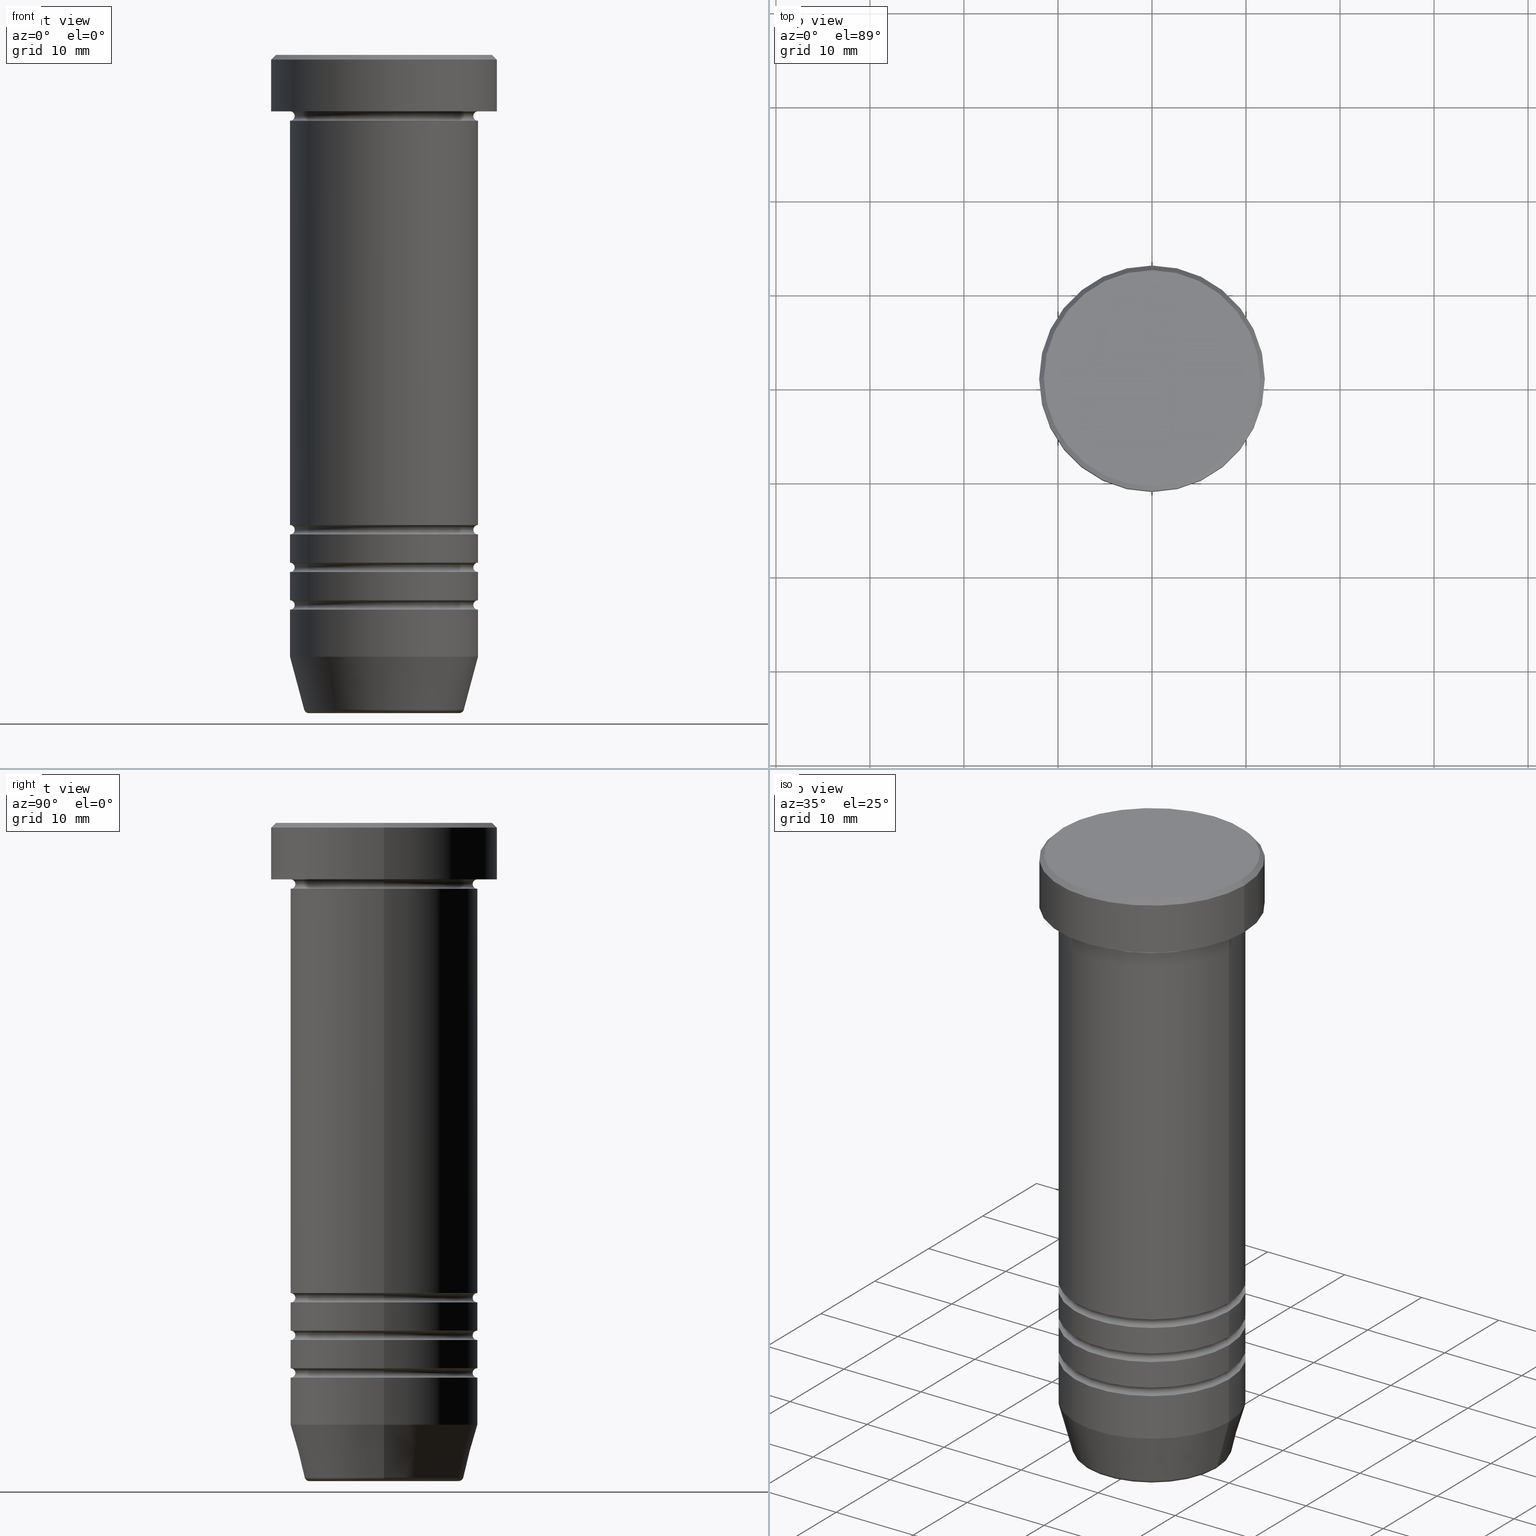
[diagram: canonical four-view strip — front | top / right | iso, engineering-drawing reading convention]
A machine part, canonical four-view strip (front | top / right | iso — engineering-drawing reading convention). The complete STEP part file that produces these views, byte-faithful:
ISO-10303-21;
HEADER;
FILE_DESCRIPTION (( 'STEP AP203' ),
    '1' );
FILE_NAME ('7434.STEP',
    '2024-01-02T21:49:12',
    ( '' ),
    ( '' ),
    'SwSTEP 2.0',
    'SolidWorks 2019',
    '' );
FILE_SCHEMA (( 'CONFIG_CONTROL_DESIGN' ));
ENDSEC;

DATA;
#1 = CARTESIAN_POINT ( 'NONE',  ( -9.999999999999996447, 1.224646799147352862E-15, 0.000000000000000000 ) ) ;
#2 = VERTEX_POINT ( 'NONE', #454 ) ;
#3 = FACE_OUTER_BOUND ( 'NONE', #55, .T. ) ;
#4 = DIRECTION ( 'NONE',  ( -0.000000000000000000, -0.000000000000000000, 1.000000000000000000 ) ) ;
#5 = EDGE_LOOP ( 'NONE', ( #351, #773, #841, #934 ) ) ;
#6 = DIRECTION ( 'NONE',  ( 1.000000000000000000, 0.000000000000000000, 0.000000000000000000 ) ) ;
#7 = CARTESIAN_POINT ( 'NONE',  ( -12.00000000000000000, 1.469576158976823947E-15, -0.5000000000000092149 ) ) ;
#8 = AXIS2_PLACEMENT_3D ( 'NONE', #543, #318, #935 ) ;
#9 = ADVANCED_FACE ( 'NONE', ( #211 ), #466, .T. ) ;
#10 = DIRECTION ( 'NONE',  ( -1.000000000000000000, 0.000000000000000000, 0.000000000000000000 ) ) ;
#11 = EDGE_CURVE ( 'NONE', #326, #621, #642, .T. ) ;
#12 = ORIENTED_EDGE ( 'NONE', *, *, #683, .F. ) ;
#13 = PERSON_AND_ORGANIZATION ( #743, #1035 ) ;
#14 = DIRECTION ( 'NONE',  ( -0.000000000000000000, -0.000000000000000000, 1.000000000000000000 ) ) ;
#15 = AXIS2_PLACEMENT_3D ( 'NONE', #525, #120, #285 ) ;
#16 = CIRCLE ( 'NONE', #627, 8.491604264568314520 ) ;
#17 = DIRECTION ( 'NONE',  ( -0.000000000000000000, -0.000000000000000000, 1.000000000000000000 ) ) ;
#18 = AXIS2_PLACEMENT_3D ( 'NONE', #840, #31, #269 ) ;
#19 = ADVANCED_FACE ( 'NONE', ( #530 ), #943, .T. ) ;
#20 = EDGE_LOOP ( 'NONE', ( #542, #629, #463, #163 ) ) ;
#21 = FACE_OUTER_BOUND ( 'NONE', #455, .T. ) ;
#22 = EDGE_LOOP ( 'NONE', ( #872, #728 ) ) ;
#23 = DIRECTION ( 'NONE',  ( -0.000000000000000000, -0.000000000000000000, 1.000000000000000000 ) ) ;
#24 = DIRECTION ( 'NONE',  ( 1.224646799147353207E-16, 1.000000000000000000, 0.000000000000000000 ) ) ;
#25 = EDGE_LOOP ( 'NONE', ( #176, #51, #362, #852 ) ) ;
#26 = PERSON_AND_ORGANIZATION_ROLE ( 'design_supplier' ) ;
#27 = CARTESIAN_POINT ( 'NONE',  ( 0.000000000000000000, 0.000000000000000000, -6.999999999999999112 ) ) ;
#28 = EDGE_CURVE ( 'NONE', #550, #928, #257, .T. ) ;
#29 = AXIS2_PLACEMENT_3D ( 'NONE', #767, #535, #125 ) ;
#30 = EDGE_LOOP ( 'NONE', ( #829, #219, #263, #436 ) ) ;
#31 = DIRECTION ( 'NONE',  ( -1.224646799147353207E-16, 1.000000000000000000, 0.000000000000000000 ) ) ;
#32 = CARTESIAN_POINT ( 'NONE',  ( 0.000000000000000000, 0.000000000000000000, -6.000000000000000000 ) ) ;
#33 = ORIENTED_EDGE ( 'NONE', *, *, #254, .F. ) ;
#34 = DIRECTION ( 'NONE',  ( -0.000000000000000000, -0.000000000000000000, 1.000000000000000000 ) ) ;
#35 = ADVANCED_FACE ( 'NONE', ( #860 ), #42, .F. ) ;
#36 = CARTESIAN_POINT ( 'NONE',  ( 0.000000000000000000, 0.000000000000000000, 0.000000000000000000 ) ) ;
#37 = EDGE_CURVE ( 'NONE', #868, #134, #182, .T. ) ;
#38 = ORIENTED_EDGE ( 'NONE', *, *, #540, .F. ) ;
#39 = ORIENTED_EDGE ( 'NONE', *, *, #315, .F. ) ;
#40 = DIRECTION ( 'NONE',  ( 1.000000000000000000, 0.000000000000000000, 0.000000000000000000 ) ) ;
#41 = DIRECTION ( 'NONE',  ( -0.000000000000000000, -0.000000000000000000, 1.000000000000000000 ) ) ;
#42 = TOROIDAL_SURFACE ( 'NONE', #478, 9.999999999999994671, 0.5000000000000000000 ) ;
#43 = CARTESIAN_POINT ( 'NONE',  ( 9.999999999999994671, 0.000000000000000000, -50.50000000000001421 ) ) ;
#44 = AXIS2_PLACEMENT_3D ( 'NONE', #577, #346, #350 ) ;
#45 = EDGE_CURVE ( 'NONE', #1011, #467, #79, .T. ) ;
#46 = AXIS2_PLACEMENT_3D ( 'NONE', #592, #181, #97 ) ;
#47 = VERTEX_POINT ( 'NONE', #603 ) ;
#48 = CARTESIAN_POINT ( 'NONE',  ( 0.000000000000000000, 0.000000000000000000, -17.50000000000000000 ) ) ;
#49 = CARTESIAN_POINT ( 'NONE',  ( 12.00000000000000000, 0.000000000000000000, 0.000000000000000000 ) ) ;
#50 = FACE_OUTER_BOUND ( 'NONE', #447, .T. ) ;
#51 = ORIENTED_EDGE ( 'NONE', *, *, #685, .F. ) ;
#52 = CARTESIAN_POINT ( 'NONE',  ( -10.00000000000000178, 1.224646799147353454E-15, -17.50000000000000000 ) ) ;
#53 = CARTESIAN_POINT ( 'NONE',  ( 9.999999999999994671, 0.000000000000000000, -58.50000000000000711 ) ) ;
#54 = DIRECTION ( 'NONE',  ( 0.000000000000000000, 0.000000000000000000, -1.000000000000000000 ) ) ;
#55 = EDGE_LOOP ( 'NONE', ( #266, #605, #180, #686 ) ) ;
#56 = DIRECTION ( 'NONE',  ( -0.000000000000000000, -0.000000000000000000, 1.000000000000000000 ) ) ;
#57 = DIRECTION ( 'NONE',  ( -1.000000000000000000, 0.000000000000000000, 0.000000000000000000 ) ) ;
#58 = ADVANCED_FACE ( 'NONE', ( #50 ), #303, .F. ) ;
#59 = CARTESIAN_POINT ( 'NONE',  ( -9.999999999999994671, 0.000000000000000000, -50.50000000000001421 ) ) ;
#60 = ORIENTED_EDGE ( 'NONE', *, *, #431, .T. ) ;
#61 = TOROIDAL_SURFACE ( 'NONE', #659, 10.00000000000000000, 0.5000000000000000000 ) ;
#62 = DIRECTION ( 'NONE',  ( -1.000000000000000000, 1.224646799147353454E-16, 0.000000000000000000 ) ) ;
#63 = AXIS2_PLACEMENT_3D ( 'NONE', #308, #325, #878 ) ;
#64 = CARTESIAN_POINT ( 'NONE',  ( 0.000000000000000000, 0.000000000000000000, -54.00000000000000711 ) ) ;
#65 = TOROIDAL_SURFACE ( 'NONE', #429, 9.999999999999994671, 0.5000000000000000000 ) ;
#66 = MANIFOLD_SOLID_BREP ( 'Zkosen�1', #274 ) ;
#67 = DIRECTION ( 'NONE',  ( 1.000000000000000000, 0.000000000000000000, 0.000000000000000000 ) ) ;
#68 = EDGE_LOOP ( 'NONE', ( #1052, #1023, #741, #735 ) ) ;
#69 = CARTESIAN_POINT ( 'NONE',  ( -9.999999999999994671, 0.000000000000000000, -54.50000000000001421 ) ) ;
#70 = LINE ( 'NONE', #1, #260 ) ;
#71 = ADVANCED_FACE ( 'NONE', ( #368 ), #692, .F. ) ;
#72 = ORIENTED_EDGE ( 'NONE', *, *, #270, .F. ) ;
#73 = DIRECTION ( 'NONE',  ( 0.000000000000000000, 0.000000000000000000, -1.000000000000000000 ) ) ;
#74 = DIRECTION ( 'NONE',  ( -0.000000000000000000, -0.000000000000000000, 1.000000000000000000 ) ) ;
#75 = TOROIDAL_SURFACE ( 'NONE', #192, 8.008641351423776200, 0.5000000000000000000 ) ;
#76 = DIRECTION ( 'NONE',  ( 0.000000000000000000, 0.000000000000000000, -1.000000000000000000 ) ) ;
#77 = ORIENTED_EDGE ( 'NONE', *, *, #164, .F. ) ;
#78 = MECHANICAL_CONTEXT ( 'NONE', #734, 'mechanical' ) ;
#79 = CIRCLE ( 'NONE', #495, 8.491604264568314520 ) ;
#80 = FACE_OUTER_BOUND ( 'NONE', #594, .T. ) ;
#81 = AXIS2_PLACEMENT_3D ( 'NONE', #300, #635, #149 ) ;
#82 = AXIS2_PLACEMENT_3D ( 'NONE', #757, #34, #611 ) ;
#83 = DIRECTION ( 'NONE',  ( 1.000000000000000000, 0.000000000000000000, 0.000000000000000000 ) ) ;
#84 = ORIENTED_EDGE ( 'NONE', *, *, #641, .T. ) ;
#85 = FACE_BOUND ( 'NONE', #769, .T. ) ;
#86 = EDGE_CURVE ( 'NONE', #891, #570, #677, .T. ) ;
#87 = EDGE_CURVE ( 'NONE', #985, #47, #626, .T. ) ;
#88 = CARTESIAN_POINT ( 'NONE',  ( 9.500000000000000000, 0.000000000000000000, -6.499999999999999112 ) ) ;
#89 = ORIENTED_EDGE ( 'NONE', *, *, #653, .F. ) ;
#90 = EDGE_LOOP ( 'NONE', ( #826, #1005, #707, #815 ) ) ;
#91 = DIRECTION ( 'NONE',  ( 1.000000000000000000, 0.000000000000000000, 0.000000000000000000 ) ) ;
#92 = CIRCLE ( 'NONE', #927, 0.5000000000000004441 ) ;
#93 = EDGE_CURVE ( 'NONE', #474, #867, #458, .T. ) ;
#94 = DIRECTION ( 'NONE',  ( 0.000000000000000000, -1.000000000000000000, 0.000000000000000000 ) ) ;
#95 = ORIENTED_EDGE ( 'NONE', *, *, #801, .T. ) ;
#96 = ORIENTED_EDGE ( 'NONE', *, *, #801, .F. ) ;
#97 = DIRECTION ( 'NONE',  ( -1.000000000000000000, -1.224646799147353454E-16, 0.000000000000000000 ) ) ;
#98 = AXIS2_PLACEMENT_3D ( 'NONE', #43, #375, #54 ) ;
#99 = VECTOR ( 'NONE', #17, 1000.000000000000000 ) ;
#100 = TOROIDAL_SURFACE ( 'NONE', #480, 9.999999999999994671, 0.5000000000000000000 ) ;
#101 = DIRECTION ( 'NONE',  ( -0.000000000000000000, -1.000000000000000000, -0.000000000000000000 ) ) ;
#102 = AXIS2_PLACEMENT_3D ( 'NONE', #708, #475, #780 ) ;
#103 = VERTEX_POINT ( 'NONE', #216 ) ;
#104 = DIRECTION ( 'NONE',  ( 1.000000000000000000, 0.000000000000000000, 0.000000000000000000 ) ) ;
#105 = CARTESIAN_POINT ( 'NONE',  ( -9.999999999999998224, 1.224646799147353059E-15, 0.000000000000000000 ) ) ;
#106 = EDGE_LOOP ( 'NONE', ( #399, #610, #785, #661 ) ) ;
#107 = PERSON_AND_ORGANIZATION ( #743, #1035 ) ;
#108 = CC_DESIGN_PERSON_AND_ORGANIZATION_ASSIGNMENT ( #111, #1006, ( #231 ) ) ;
#109 = DIRECTION ( 'NONE',  ( -0.000000000000000000, -0.000000000000000000, 1.000000000000000000 ) ) ;
#110 = VERTEX_POINT ( 'NONE', #547 ) ;
#111 = PERSON_AND_ORGANIZATION ( #743, #1035 ) ;
#112 = CARTESIAN_POINT ( 'NONE',  ( 0.000000000000000000, 0.000000000000000000, -70.00000000000000000 ) ) ;
#113 = AXIS2_PLACEMENT_3D ( 'NONE', #265, #675, #654 ) ;
#114 = ORIENTED_EDGE ( 'NONE', *, *, #956, .T. ) ;
#115 = CIRCLE ( 'NONE', #529, 0.5000000000000004441 ) ;
#116 = CIRCLE ( 'NONE', #222, 0.5000000000000004441 ) ;
#117 = DIRECTION ( 'NONE',  ( -0.000000000000000000, -0.000000000000000000, 1.000000000000000000 ) ) ;
#118 = ADVANCED_FACE ( 'NONE', ( #772 ), #215, .F. ) ;
#119 = EDGE_CURVE ( 'NONE', #110, #47, #236, .T. ) ;
#120 = DIRECTION ( 'NONE',  ( -1.224646799147353207E-16, 1.000000000000000000, 0.000000000000000000 ) ) ;
#121 = ORIENTED_EDGE ( 'NONE', *, *, #994, .F. ) ;
#122 = DIRECTION ( 'NONE',  ( 0.000000000000000000, 0.000000000000000000, -1.000000000000000000 ) ) ;
#123 = CARTESIAN_POINT ( 'NONE',  ( -11.49999999999999822, 0.000000000000000000, 0.000000000000000000 ) ) ;
#124 = EDGE_CURVE ( 'NONE', #928, #103, #969, .T. ) ;
#125 = DIRECTION ( 'NONE',  ( -1.000000000000000000, 0.000000000000000000, 0.000000000000000000 ) ) ;
#126 = ORIENTED_EDGE ( 'NONE', *, *, #28, .F. ) ;
#127 = PLANE ( 'NONE',  #989 ) ;
#128 = AXIS2_PLACEMENT_3D ( 'NONE', #484, #807, #83 ) ;
#129 = VECTOR ( 'NONE', #41, 1000.000000000000000 ) ;
#130 = ORIENTED_EDGE ( 'NONE', *, *, #420, .T. ) ;
#131 = DIRECTION ( 'NONE',  ( -0.000000000000000000, -0.000000000000000000, 1.000000000000000000 ) ) ;
#132 = CYLINDRICAL_SURFACE ( 'NONE', #917, 10.00000000000000000 ) ;
#133 = VERTEX_POINT ( 'NONE', #649 ) ;
#134 = VERTEX_POINT ( 'NONE', #890 ) ;
#135 = CARTESIAN_POINT ( 'NONE',  ( 0.000000000000000000, 0.000000000000000000, -58.00000000000000711 ) ) ;
#136 = EDGE_CURVE ( 'NONE', #867, #474, #145, .T. ) ;
#137 = DIRECTION ( 'NONE',  ( 0.000000000000000000, 0.000000000000000000, -1.000000000000000000 ) ) ;
#138 = CARTESIAN_POINT ( 'NONE',  ( 0.000000000000000000, 0.000000000000000000, -58.00000000000000711 ) ) ;
#139 = ORIENTED_EDGE ( 'NONE', *, *, #1060, .T. ) ;
#140 = CIRCLE ( 'NONE', #740, 10.00000000000000000 ) ;
#141 = CARTESIAN_POINT ( 'NONE',  ( 0.000000000000000000, 0.000000000000000000, 0.000000000000000000 ) ) ;
#142 = DIRECTION ( 'NONE',  ( -0.000000000000000000, -0.000000000000000000, 1.000000000000000000 ) ) ;
#143 = FACE_OUTER_BOUND ( 'NONE', #90, .T. ) ;
#144 = VERTEX_POINT ( 'NONE', #229 ) ;
#145 = CIRCLE ( 'NONE', #1058, 12.00000000000000000 ) ;
#146 = COORDINATED_UNIVERSAL_TIME_OFFSET ( 1, 0, .AHEAD. ) ;
#147 = ORIENTED_EDGE ( 'NONE', *, *, #186, .T. ) ;
#148 = CIRCLE ( 'NONE', #290, 10.00000000000000000 ) ;
#149 = DIRECTION ( 'NONE',  ( 1.000000000000000000, 0.000000000000000000, 0.000000000000000000 ) ) ;
#150 = AXIS2_PLACEMENT_3D ( 'NONE', #904, #487, #252 ) ;
#151 = EDGE_CURVE ( 'NONE', #333, #891, #390, .T. ) ;
#152 = DIRECTION ( 'NONE',  ( 1.000000000000000000, 0.000000000000000000, 0.000000000000000000 ) ) ;
#153 = VERTEX_POINT ( 'NONE', #1051 ) ;
#154 = FACE_OUTER_BOUND ( 'NONE', #774, .T. ) ;
#155 = VERTEX_POINT ( 'NONE', #720 ) ;
#156 = CARTESIAN_POINT ( 'NONE',  ( 0.000000000000000000, 0.000000000000000000, -6.500000000000000888 ) ) ;
#157 = EDGE_CURVE ( 'NONE', #153, #967, #817, .T. ) ;
#158 = EDGE_LOOP ( 'NONE', ( #72, #748, #1048, #846 ) ) ;
#159 = CARTESIAN_POINT ( 'NONE',  ( 0.000000000000000000, 0.000000000000000000, 0.000000000000000000 ) ) ;
#160 = CARTESIAN_POINT ( 'NONE',  ( 0.000000000000000000, 0.000000000000000000, 0.000000000000000000 ) ) ;
#161 = DIRECTION ( 'NONE',  ( -0.000000000000000000, -0.000000000000000000, 1.000000000000000000 ) ) ;
#162 = EDGE_CURVE ( 'NONE', #110, #501, #441, .T. ) ;
#163 = ORIENTED_EDGE ( 'NONE', *, *, #921, .F. ) ;
#164 = EDGE_CURVE ( 'NONE', #2, #103, #988, .T. ) ;
#165 = AXIS2_PLACEMENT_3D ( 'NONE', #397, #494, #712 ) ;
#166 = DIRECTION ( 'NONE',  ( -1.000000000000000000, 0.000000000000000000, 0.000000000000000000 ) ) ;
#167 = AXIS2_PLACEMENT_3D ( 'NONE', #1055, #973, #67 ) ;
#168 = CIRCLE ( 'NONE', #937, 9.999999999999992895 ) ;
#169 = CARTESIAN_POINT ( 'NONE',  ( 0.000000000000000000, 0.000000000000000000, -55.00000000000001421 ) ) ;
#170 = ORIENTED_EDGE ( 'NONE', *, *, #280, .F. ) ;
#171 = EDGE_LOOP ( 'NONE', ( #89, #413, #147, #226 ) ) ;
#172 = PERSON_AND_ORGANIZATION ( #743, #1035 ) ;
#173 = CARTESIAN_POINT ( 'NONE',  ( 0.000000000000000000, 0.000000000000000000, -58.50000000000000711 ) ) ;
#174 = ADVANCED_FACE ( 'NONE', ( #391 ), #61, .F. ) ;
#175 = CYLINDRICAL_SURFACE ( 'NONE', #275, 10.00000000000000000 ) ;
#176 = ORIENTED_EDGE ( 'NONE', *, *, #929, .F. ) ;
#177 = LINE ( 'NONE', #914, #583 ) ;
#178 = AXIS2_PLACEMENT_3D ( 'NONE', #159, #986, #232 ) ;
#179 = CARTESIAN_POINT ( 'NONE',  ( 9.999999999999996447, 0.000000000000000000, 0.000000000000000000 ) ) ;
#180 = ORIENTED_EDGE ( 'NONE', *, *, #11, .T. ) ;
#181 = DIRECTION ( 'NONE',  ( -1.224646799147353207E-16, 1.000000000000000000, 0.000000000000000000 ) ) ;
#182 = CIRCLE ( 'NONE', #932, 10.00000000000000000 ) ;
#183 = CIRCLE ( 'NONE', #309, 10.00000000000000000 ) ;
#184 = CIRCLE ( 'NONE', #18, 0.5000000000000004441 ) ;
#185 = LINE ( 'NONE', #179, #613 ) ;
#186 = EDGE_CURVE ( 'NONE', #467, #153, #563, .T. ) ;
#187 = ORIENTED_EDGE ( 'NONE', *, *, #151, .T. ) ;
#188 = CARTESIAN_POINT ( 'NONE',  ( 0.000000000000000000, 0.000000000000000000, -0.5000000000000092149 ) ) ;
#189 = ORIENTED_EDGE ( 'NONE', *, *, #377, .T. ) ;
#190 = DATE_AND_TIME ( #975, #792 ) ;
#191 = FACE_OUTER_BOUND ( 'NONE', #158, .T. ) ;
#192 = AXIS2_PLACEMENT_3D ( 'NONE', #328, #823, #892 ) ;
#193 = ADVANCED_BREP_SHAPE_REPRESENTATION ( '7434', ( #66, #793, #178 ), #302 ) ;
#194 = CARTESIAN_POINT ( 'NONE',  ( 0.000000000000000000, 0.000000000000000000, -55.00000000000001421 ) ) ;
#195 = EDGE_CURVE ( 'NONE', #287, #918, #70, .T. ) ;
#196 = DIRECTION ( 'NONE',  ( -0.000000000000000000, -0.000000000000000000, 1.000000000000000000 ) ) ;
#197 = ORIENTED_EDGE ( 'NONE', *, *, #690, .T. ) ;
#198 = EDGE_CURVE ( 'NONE', #717, #979, #327, .T. ) ;
#199 = AXIS2_PLACEMENT_3D ( 'NONE', #1037, #709, #214 ) ;
#200 = ORIENTED_EDGE ( 'NONE', *, *, #286, .F. ) ;
#201 = AXIS2_PLACEMENT_3D ( 'NONE', #27, #109, #273 ) ;
#202 = CIRCLE ( 'NONE', #803, 10.00000000000000000 ) ;
#203 = ORIENTED_EDGE ( 'NONE', *, *, #556, .F. ) ;
#204 = CARTESIAN_POINT ( 'NONE',  ( 11.49999999999999822, 1.408343819019455979E-15, 0.000000000000000000 ) ) ;
#205 = CARTESIAN_POINT ( 'NONE',  ( 9.999999999999994671, 0.000000000000000000, -54.50000000000000711 ) ) ;
#206 = CC_DESIGN_PERSON_AND_ORGANIZATION_ASSIGNMENT ( #639, #1057, ( #984 ) ) ;
#207 = CARTESIAN_POINT ( 'NONE',  ( 0.000000000000000000, 0.000000000000000000, -54.50000000000000711 ) ) ;
#208 = ORIENTED_EDGE ( 'NONE', *, *, #37, .T. ) ;
#209 = CARTESIAN_POINT ( 'NONE',  ( 10.00000000000000000, 0.000000000000000000, 0.000000000000000000 ) ) ;
#210 = DIRECTION ( 'NONE',  ( -0.000000000000000000, -0.000000000000000000, 1.000000000000000000 ) ) ;
#211 = FACE_OUTER_BOUND ( 'NONE', #790, .T. ) ;
#212 = ORIENTED_EDGE ( 'NONE', *, *, #690, .F. ) ;
#213 = FACE_OUTER_BOUND ( 'NONE', #376, .T. ) ;
#214 = DIRECTION ( 'NONE',  ( 1.000000000000000000, 0.000000000000000000, 0.000000000000000000 ) ) ;
#215 = TOROIDAL_SURFACE ( 'NONE', #165, 9.999999999999994671, 0.5000000000000000000 ) ;
#216 = CARTESIAN_POINT ( 'NONE',  ( -9.499999999999994671, 1.194030629168668681E-15, -50.50000000000001421 ) ) ;
#217 = ADVANCED_FACE ( 'NONE', ( #401 ), #749, .T. ) ;
#218 = AXIS2_PLACEMENT_3D ( 'NONE', #1044, #618, #57 ) ;
#219 = ORIENTED_EDGE ( 'NONE', *, *, #765, .T. ) ;
#220 = ORIENTED_EDGE ( 'NONE', *, *, #286, .T. ) ;
#221 = CARTESIAN_POINT ( 'NONE',  ( 0.000000000000000000, 0.000000000000000000, 0.000000000000000000 ) ) ;
#222 = AXIS2_PLACEMENT_3D ( 'NONE', #352, #448, #836 ) ;
#223 = CARTESIAN_POINT ( 'NONE',  ( 11.49999999999999822, 1.438959988998139963E-15, 0.000000000000000000 ) ) ;
#224 = LINE ( 'NONE', #900, #443 ) ;
#225 = ORIENTED_EDGE ( 'NONE', *, *, #548, .F. ) ;
#226 = ORIENTED_EDGE ( 'NONE', *, *, #850, .F. ) ;
#227 = DIRECTION ( 'NONE',  ( 1.000000000000000000, 0.000000000000000000, 0.000000000000000000 ) ) ;
#228 = CARTESIAN_POINT ( 'NONE',  ( 9.999999999999992895, 0.000000000000000000, -50.00000000000001421 ) ) ;
#229 = CARTESIAN_POINT ( 'NONE',  ( -9.500000000000000000, 1.194030629168669469E-15, -6.499999999999999112 ) ) ;
#230 = EDGE_LOOP ( 'NONE', ( #292, #804, #272, #225 ) ) ;
#231 = PRODUCT_DEFINITION_FORMATION_WITH_SPECIFIED_SOURCE ( 'LIBOVOLN�', '', #984, .NOT_KNOWN. ) ;
#232 = DIRECTION ( 'NONE',  ( 1.000000000000000000, 0.000000000000000000, 0.000000000000000000 ) ) ;
#233 = EDGE_CURVE ( 'NONE', #144, #939, #345, .T. ) ;
#234 = FACE_OUTER_BOUND ( 'NONE', #22, .T. ) ;
#235 = ADVANCED_FACE ( 'NONE', ( #143 ), #781, .F. ) ;
#236 = LINE ( 'NONE', #1046, #307 ) ;
#237 = VERTEX_POINT ( 'NONE', #243 ) ;
#238 = AXIS2_PLACEMENT_3D ( 'NONE', #1004, #666, #507 ) ;
#239 = CIRCLE ( 'NONE', #711, 9.499999999999994671 ) ;
#240 = CARTESIAN_POINT ( 'NONE',  ( -10.00000000000000000, 1.224646799147353256E-15, 0.000000000000000000 ) ) ;
#241 = AXIS2_PLACEMENT_3D ( 'NONE', #188, #356, #367 ) ;
#242 = APPROVAL ( #963, 'NEUR�EN�' ) ;
#243 = CARTESIAN_POINT ( 'NONE',  ( -9.499999999999994671, 1.194030629168668681E-15, -58.50000000000000711 ) ) ;
#244 = PRODUCT_DEFINITION_SHAPE ( 'NONE', 'NONE',  #588 ) ;
#245 = ORIENTED_EDGE ( 'NONE', *, *, #315, .T. ) ;
#246 = CARTESIAN_POINT ( 'NONE',  ( 0.000000000000000000, 0.000000000000000000, 0.000000000000000000 ) ) ;
#247 = DIRECTION ( 'NONE',  ( -0.000000000000000000, -0.000000000000000000, 1.000000000000000000 ) ) ;
#248 = CARTESIAN_POINT ( 'NONE',  ( -9.999999999999996447, 1.224646799147352862E-15, 0.000000000000000000 ) ) ;
#249 = ORIENTED_EDGE ( 'NONE', *, *, #151, .F. ) ;
#250 = FACE_OUTER_BOUND ( 'NONE', #755, .T. ) ;
#251 = AXIS2_PLACEMENT_3D ( 'NONE', #1053, #897, #980 ) ;
#252 = DIRECTION ( 'NONE',  ( 0.000000000000000000, 0.000000000000000000, -1.000000000000000000 ) ) ;
#253 = DIRECTION ( 'NONE',  ( -0.000000000000000000, -0.000000000000000000, 1.000000000000000000 ) ) ;
#254 = EDGE_CURVE ( 'NONE', #320, #918, #183, .T. ) ;
#255 = ORIENTED_EDGE ( 'NONE', *, *, #423, .F. ) ;
#256 = COORDINATED_UNIVERSAL_TIME_OFFSET ( 1, 0, .AHEAD. ) ;
#257 = CIRCLE ( 'NONE', #98, 0.5000000000000004441 ) ;
#258 = DESIGN_CONTEXT ( 'detailed design', #839, 'design' ) ;
#259 = DIRECTION ( 'NONE',  ( -0.000000000000000000, -1.000000000000000000, -0.000000000000000000 ) ) ;
#260 = VECTOR ( 'NONE', #961, 1000.000000000000000 ) ;
#261 = VECTOR ( 'NONE', #640, 1000.000000000000114 ) ;
#262 = DIRECTION ( 'NONE',  ( 0.000000000000000000, 0.000000000000000000, -1.000000000000000000 ) ) ;
#263 = ORIENTED_EDGE ( 'NONE', *, *, #398, .T. ) ;
#264 = DIRECTION ( 'NONE',  ( -1.000000000000000000, 0.000000000000000000, 0.000000000000000000 ) ) ;
#265 = CARTESIAN_POINT ( 'NONE',  ( 0.000000000000000000, 0.000000000000000000, -54.50000000000000711 ) ) ;
#266 = ORIENTED_EDGE ( 'NONE', *, *, #87, .T. ) ;
#267 = CALENDAR_DATE ( 2024, 2, 1 ) ;
#268 = UNCERTAINTY_MEASURE_WITH_UNIT (LENGTH_MEASURE( 1.000000000000000082E-05 ), #334, 'distance_accuracy_value', 'NONE');
#269 = DIRECTION ( 'NONE',  ( -1.000000000000000000, -1.224646799147353454E-16, 0.000000000000000000 ) ) ;
#270 = EDGE_CURVE ( 'NONE', #501, #985, #955, .T. ) ;
#271 = DIRECTION ( 'NONE',  ( -0.000000000000000000, -0.000000000000000000, 1.000000000000000000 ) ) ;
#272 = ORIENTED_EDGE ( 'NONE', *, *, #423, .T. ) ;
#273 = DIRECTION ( 'NONE',  ( 1.000000000000000000, 0.000000000000000000, 0.000000000000000000 ) ) ;
#274 = CLOSED_SHELL ( 'NONE', ( #1039, #174, #235, #578, #957, #549, #471, #731, #612, #534, #825, #964, #581 ) ) ;
#275 = AXIS2_PLACEMENT_3D ( 'NONE', #584, #337, #983 ) ;
#276 = AXIS2_PLACEMENT_3D ( 'NONE', #279, #117, #602 ) ;
#277 = CARTESIAN_POINT ( 'NONE',  ( -10.00000000000000000, 1.224646799147353256E-15, -59.00000000000001421 ) ) ;
#278 = ORIENTED_EDGE ( 'NONE', *, *, #705, .F. ) ;
#279 = CARTESIAN_POINT ( 'NONE',  ( 0.000000000000000000, 0.000000000000000000, 0.000000000000000000 ) ) ;
#280 = EDGE_CURVE ( 'NONE', #474, #638, #224, .T. ) ;
#281 = EDGE_LOOP ( 'NONE', ( #759, #1030, #485, #342 ) ) ;
#282 = EDGE_CURVE ( 'NONE', #153, #891, #593, .T. ) ;
#283 = CARTESIAN_POINT ( 'NONE',  ( 0.000000000000000000, 0.000000000000000000, -6.499999999999999112 ) ) ;
#284 = VECTOR ( 'NONE', #131, 1000.000000000000000 ) ;
#285 = DIRECTION ( 'NONE',  ( -1.000000000000000000, -1.224646799147353454E-16, 0.000000000000000000 ) ) ;
#286 = EDGE_CURVE ( 'NONE', #501, #237, #952, .T. ) ;
#287 = VERTEX_POINT ( 'NONE', #754 ) ;
#288 = DIRECTION ( 'NONE',  ( 1.000000000000000000, 0.000000000000000000, 0.000000000000000000 ) ) ;
#289 = AXIS2_PLACEMENT_3D ( 'NONE', #365, #620, #1021 ) ;
#290 = AXIS2_PLACEMENT_3D ( 'NONE', #169, #739, #341 ) ;
#291 = AXIS2_PLACEMENT_3D ( 'NONE', #452, #4, #938 ) ;
#292 = ORIENTED_EDGE ( 'NONE', *, *, #732, .F. ) ;
#293 = AXIS2_PLACEMENT_3D ( 'NONE', #160, #493, #893 ) ;
#294 = ORIENTED_EDGE ( 'NONE', *, *, #411, .T. ) ;
#295 = CARTESIAN_POINT ( 'NONE',  ( -10.00000000000000000, 1.224646799147353256E-15, -6.999999999999999112 ) ) ;
#296 = DIRECTION ( 'NONE',  ( -1.000000000000000000, 0.000000000000000000, 0.000000000000000000 ) ) ;
#297 = DIRECTION ( 'NONE',  ( 1.000000000000000000, 0.000000000000000000, 0.000000000000000000 ) ) ;
#298 = ORIENTED_EDGE ( 'NONE', *, *, #506, .F. ) ;
#299 = CYLINDRICAL_SURFACE ( 'NONE', #353, 12.00000000000000000 ) ;
#300 = CARTESIAN_POINT ( 'NONE',  ( 0.000000000000000000, 0.000000000000000000, -58.50000000000000711 ) ) ;
#301 = ADVANCED_FACE ( 'NONE', ( #670 ), #1043, .T. ) ;
#302 =( GEOMETRIC_REPRESENTATION_CONTEXT ( 3 ) GLOBAL_UNCERTAINTY_ASSIGNED_CONTEXT ( ( #268 ) ) GLOBAL_UNIT_ASSIGNED_CONTEXT ( ( #334, #492, #339 ) ) REPRESENTATION_CONTEXT ( 'NONE', 'WORKASPACE' ) );
#303 = PLANE ( 'NONE',  #357 ) ;
#304 = ORIENTED_EDGE ( 'NONE', *, *, #540, .T. ) ;
#305 = DIRECTION ( 'NONE',  ( 1.000000000000000000, 0.000000000000000000, 0.000000000000000000 ) ) ;
#306 = CARTESIAN_POINT ( 'NONE',  ( -9.999999999999992895, 1.224646799147352665E-15, -58.00000000000000711 ) ) ;
#307 = VECTOR ( 'NONE', #966, 1000.000000000000000 ) ;
#308 = CARTESIAN_POINT ( 'NONE',  ( -10.00000000000000000, 1.224646799147353256E-15, -6.499999999999999112 ) ) ;
#309 = AXIS2_PLACEMENT_3D ( 'NONE', #404, #332, #978 ) ;
#310 = EDGE_LOOP ( 'NONE', ( #667, #1056, #681, #255 ) ) ;
#311 = CARTESIAN_POINT ( 'NONE',  ( -10.00000000000000178, 1.224646799147353454E-15, -55.00000000000001421 ) ) ;
#312 = CIRCLE ( 'NONE', #462, 9.499999999999994671 ) ;
#313 = FACE_OUTER_BOUND ( 'NONE', #424, .T. ) ;
#314 = DIRECTION ( 'NONE',  ( 0.000000000000000000, 0.000000000000000000, -1.000000000000000000 ) ) ;
#315 = EDGE_CURVE ( 'NONE', #550, #320, #185, .T. ) ;
#316 = EDGE_CURVE ( 'NONE', #287, #103, #1010, .T. ) ;
#317 = ORIENTED_EDGE ( 'NONE', *, *, #477, .F. ) ;
#318 = DIRECTION ( 'NONE',  ( -0.000000000000000000, -0.000000000000000000, 1.000000000000000000 ) ) ;
#319 = DIRECTION ( 'NONE',  ( 0.000000000000000000, 0.000000000000000000, -1.000000000000000000 ) ) ;
#320 = VERTEX_POINT ( 'NONE', #430 ) ;
#321 = CC_DESIGN_APPROVAL ( #883, ( #231 ) ) ;
#322 = CARTESIAN_POINT ( 'NONE',  ( -9.999999999999994671, 1.224646799147352665E-15, -54.50000000000000711 ) ) ;
#323 = CC_DESIGN_PERSON_AND_ORGANIZATION_ASSIGNMENT ( #908, #750, ( #982 ) ) ;
#324 = FACE_OUTER_BOUND ( 'NONE', #30, .T. ) ;
#325 = DIRECTION ( 'NONE',  ( 1.224646799147353207E-16, 1.000000000000000000, 0.000000000000000000 ) ) ;
#326 = VERTEX_POINT ( 'NONE', #854 ) ;
#327 = CIRCLE ( 'NONE', #694, 8.008641351423776200 ) ;
#328 = CARTESIAN_POINT ( 'NONE',  ( 0.000000000000000000, 0.000000000000000000, -69.50000000000000000 ) ) ;
#329 = CIRCLE ( 'NONE', #751, 10.00000000000000000 ) ;
#330 = CARTESIAN_POINT ( 'NONE',  ( 0.000000000000000000, 12.00000000000000000, -6.000000000000000000 ) ) ;
#331 = CIRCLE ( 'NONE', #517, 9.999999999999992895 ) ;
#332 = DIRECTION ( 'NONE',  ( -0.000000000000000000, -0.000000000000000000, 1.000000000000000000 ) ) ;
#333 = VERTEX_POINT ( 'NONE', #277 ) ;
#334 =( LENGTH_UNIT ( ) NAMED_UNIT ( * ) SI_UNIT ( .MILLI., .METRE. ) );
#335 = DIRECTION ( 'NONE',  ( 1.000000000000000000, 0.000000000000000000, 0.000000000000000000 ) ) ;
#336 = EDGE_CURVE ( 'NONE', #155, #638, #435, .T. ) ;
#337 = DIRECTION ( 'NONE',  ( -0.000000000000000000, -0.000000000000000000, 1.000000000000000000 ) ) ;
#338 = ORIENTED_EDGE ( 'NONE', *, *, #11, .F. ) ;
#339 =( NAMED_UNIT ( * ) SI_UNIT ( $, .STERADIAN. ) SOLID_ANGLE_UNIT ( ) );
#340 = CYLINDRICAL_SURFACE ( 'NONE', #497, 10.00000000000000000 ) ;
#341 = DIRECTION ( 'NONE',  ( 1.000000000000000000, 0.000000000000000000, 0.000000000000000000 ) ) ;
#342 = ORIENTED_EDGE ( 'NONE', *, *, #705, .T. ) ;
#343 = DATE_AND_TIME ( #768, #912 ) ;
#344 = LINE ( 'NONE', #981, #261 ) ;
#345 = CIRCLE ( 'NONE', #63, 0.5000000000000004441 ) ;
#346 = DIRECTION ( 'NONE',  ( 1.224646799147353207E-16, 1.000000000000000000, 0.000000000000000000 ) ) ;
#347 = ORIENTED_EDGE ( 'NONE', *, *, #674, .F. ) ;
#348 = EDGE_CURVE ( 'NONE', #944, #2, #499, .T. ) ;
#349 = EDGE_LOOP ( 'NONE', ( #394, #962, #95, #38 ) ) ;
#350 = DIRECTION ( 'NONE',  ( -1.000000000000000000, 1.224646799147353454E-16, 0.000000000000000000 ) ) ;
#351 = ORIENTED_EDGE ( 'NONE', *, *, #316, .F. ) ;
#352 = CARTESIAN_POINT ( 'NONE',  ( 9.999999999999994671, 1.224646799147352665E-15, -50.50000000000001421 ) ) ;
#353 = AXIS2_PLACEMENT_3D ( 'NONE', #714, #56, #305 ) ;
#354 = DIRECTION ( 'NONE',  ( 0.000000000000000000, 0.000000000000000000, -1.000000000000000000 ) ) ;
#355 = EDGE_LOOP ( 'NONE', ( #650, #1041, #995, #601 ) ) ;
#356 = DIRECTION ( 'NONE',  ( 0.000000000000000000, 0.000000000000000000, -1.000000000000000000 ) ) ;
#357 = AXIS2_PLACEMENT_3D ( 'NONE', #615, #931, #925 ) ;
#358 = ADVANCED_FACE ( 'NONE', ( #758 ), #833, .F. ) ;
#359 = VECTOR ( 'NONE', #271, 1000.000000000000000 ) ;
#360 = CIRCLE ( 'NONE', #150, 0.5000000000000004441 ) ;
#361 = EDGE_CURVE ( 'NONE', #366, #133, #818, .T. ) ;
#362 = ORIENTED_EDGE ( 'NONE', *, *, #655, .T. ) ;
#363 = CYLINDRICAL_SURFACE ( 'NONE', #276, 9.999999999999996447 ) ;
#364 = EDGE_CURVE ( 'NONE', #144, #366, #426, .T. ) ;
#365 = CARTESIAN_POINT ( 'NONE',  ( 0.000000000000000000, 0.000000000000000000, 0.000000000000000000 ) ) ;
#366 = VERTEX_POINT ( 'NONE', #88 ) ;
#367 = DIRECTION ( 'NONE',  ( 1.000000000000000000, 0.000000000000000000, 0.000000000000000000 ) ) ;
#368 = FACE_OUTER_BOUND ( 'NONE', #633, .T. ) ;
#369 = ORIENTED_EDGE ( 'NONE', *, *, #548, .T. ) ;
#370 = EDGE_LOOP ( 'NONE', ( #200, #1034, #422, #317 ) ) ;
#371 = CARTESIAN_POINT ( 'NONE',  ( -10.00000000000000000, 1.224646799147353256E-15, -64.00000000000000000 ) ) ;
#372 = FACE_OUTER_BOUND ( 'NONE', #940, .T. ) ;
#373 = AXIS2_PLACEMENT_3D ( 'NONE', #465, #865, #965 ) ;
#374 = CIRCLE ( 'NONE', #444, 8.008641351423776200 ) ;
#375 = DIRECTION ( 'NONE',  ( 0.000000000000000000, -1.000000000000000000, 0.000000000000000000 ) ) ;
#376 = EDGE_LOOP ( 'NONE', ( #406, #220, #212, #298 ) ) ;
#377 = EDGE_CURVE ( 'NONE', #918, #320, #1022, .T. ) ;
#378 = DIRECTION ( 'NONE',  ( -1.000000000000000000, 0.000000000000000000, -0.000000000000000000 ) ) ;
#379 = DIRECTION ( 'NONE',  ( -0.000000000000000000, -0.000000000000000000, 1.000000000000000000 ) ) ;
#380 = ORIENTED_EDGE ( 'NONE', *, *, #316, .T. ) ;
#381 = CARTESIAN_POINT ( 'NONE',  ( 8.008641351423776200, 0.000000000000000000, -70.00000000000000000 ) ) ;
#382 = DIRECTION ( 'NONE',  ( 1.000000000000000000, 0.000000000000000000, 0.000000000000000000 ) ) ;
#383 = APPROVAL_PERSON_ORGANIZATION ( #13, #883, #888 ) ;
#384 = CARTESIAN_POINT ( 'NONE',  ( 0.000000000000000000, 0.000000000000000000, -54.50000000000000711 ) ) ;
#385 = ORIENTED_EDGE ( 'NONE', *, *, #86, .F. ) ;
#386 = DIRECTION ( 'NONE',  ( 1.000000000000000000, 0.000000000000000000, 0.000000000000000000 ) ) ;
#387 = FACE_OUTER_BOUND ( 'NONE', #370, .T. ) ;
#388 = EDGE_CURVE ( 'NONE', #691, #326, #747, .T. ) ;
#389 = ADVANCED_FACE ( 'NONE', ( #911 ), #175, .T. ) ;
#390 = CIRCLE ( 'NONE', #128, 10.00000000000000000 ) ;
#391 = FACE_OUTER_BOUND ( 'NONE', #310, .T. ) ;
#392 = AXIS2_PLACEMENT_3D ( 'NONE', #859, #870, #695 ) ;
#393 = AXIS2_PLACEMENT_3D ( 'NONE', #723, #247, #437 ) ;
#394 = ORIENTED_EDGE ( 'NONE', *, *, #136, .T. ) ;
#395 = CARTESIAN_POINT ( 'NONE',  ( 9.499999999999994671, 0.000000000000000000, -50.50000000000001421 ) ) ;
#396 = FACE_OUTER_BOUND ( 'NONE', #355, .T. ) ;
#397 = CARTESIAN_POINT ( 'NONE',  ( 0.000000000000000000, 0.000000000000000000, -50.50000000000001421 ) ) ;
#398 = EDGE_CURVE ( 'NONE', #691, #676, #828, .T. ) ;
#399 = ORIENTED_EDGE ( 'NONE', *, *, #162, .T. ) ;
#400 = DIRECTION ( 'NONE',  ( -0.000000000000000000, -0.000000000000000000, 1.000000000000000000 ) ) ;
#401 = FACE_OUTER_BOUND ( 'NONE', #481, .T. ) ;
#402 = EDGE_LOOP ( 'NONE', ( #121, #347, #698, #566 ) ) ;
#403 = DIRECTION ( 'NONE',  ( -0.000000000000000000, -0.000000000000000000, 1.000000000000000000 ) ) ;
#404 = CARTESIAN_POINT ( 'NONE',  ( 0.000000000000000000, 0.000000000000000000, -17.50000000000000000 ) ) ;
#405 = AXIS2_PLACEMENT_3D ( 'NONE', #207, #684, #697 ) ;
#406 = ORIENTED_EDGE ( 'NONE', *, *, #915, .F. ) ;
#407 = CIRCLE ( 'NONE', #373, 9.999999999999992895 ) ;
#408 = APPLICATION_PROTOCOL_DEFINITION ( 'international standard', 'config_control_design', 1994, #839 ) ;
#409 = AXIS2_PLACEMENT_3D ( 'NONE', #682, #924, #434 ) ;
#410 = DIRECTION ( 'NONE',  ( 0.000000000000000000, 0.000000000000000000, -1.000000000000000000 ) ) ;
#411 = EDGE_CURVE ( 'NONE', #467, #1011, #16, .T. ) ;
#412 = DIRECTION ( 'NONE',  ( 1.000000000000000000, 0.000000000000000000, 0.000000000000000000 ) ) ;
#413 = ORIENTED_EDGE ( 'NONE', *, *, #45, .T. ) ;
#414 = PLANE ( 'NONE',  #664 ) ;
#415 = CARTESIAN_POINT ( 'NONE',  ( 0.000000000000000000, 0.000000000000000000, -69.62940952255125637 ) ) ;
#416 = ORIENTED_EDGE ( 'NONE', *, *, #921, .T. ) ;
#417 = DATE_AND_TIME ( #482, #842 ) ;
#418 = CIRCLE ( 'NONE', #251, 0.5000000000000004441 ) ;
#419 = DIRECTION ( 'NONE',  ( -0.000000000000000000, -0.000000000000000000, 1.000000000000000000 ) ) ;
#420 = EDGE_CURVE ( 'NONE', #47, #985, #148, .T. ) ;
#421 = CARTESIAN_POINT ( 'NONE',  ( 9.999999999999998224, 0.000000000000000000, 0.000000000000000000 ) ) ;
#422 = ORIENTED_EDGE ( 'NONE', *, *, #506, .T. ) ;
#423 = EDGE_CURVE ( 'NONE', #144, #868, #528, .T. ) ;
#424 = EDGE_LOOP ( 'NONE', ( #12, #974, #922, #249 ) ) ;
#425 = AXIS2_PLACEMENT_3D ( 'NONE', #194, #855, #948 ) ;
#426 = CIRCLE ( 'NONE', #864, 9.500000000000000000 ) ;
#427 = FACE_OUTER_BOUND ( 'NONE', #171, .T. ) ;
#428 = AXIS2_PLACEMENT_3D ( 'NONE', #744, #657, #166 ) ;
#429 = AXIS2_PLACEMENT_3D ( 'NONE', #173, #976, #264 ) ;
#430 = CARTESIAN_POINT ( 'NONE',  ( 10.00000000000000000, 0.000000000000000000, -17.50000000000000000 ) ) ;
#431 = EDGE_CURVE ( 'NONE', #554, #862, #546, .T. ) ;
#432 = ORIENTED_EDGE ( 'NONE', *, *, #1026, .F. ) ;
#433 = APPROVAL_STATUS ( 'not_yet_approved' ) ;
#434 = DIRECTION ( 'NONE',  ( -1.000000000000000000, 0.000000000000000000, 0.000000000000000000 ) ) ;
#435 = LINE ( 'NONE', #123, #562 ) ;
#436 = ORIENTED_EDGE ( 'NONE', *, *, #771, .F. ) ;
#437 = DIRECTION ( 'NONE',  ( 1.000000000000000000, 0.000000000000000000, 0.000000000000000000 ) ) ;
#438 = ORIENTED_EDGE ( 'NONE', *, *, #469, .T. ) ;
#439 = DATE_TIME_ROLE ( 'classification_date' ) ;
#440 = DIRECTION ( 'NONE',  ( 1.000000000000000000, 0.000000000000000000, 0.000000000000000000 ) ) ;
#441 = CIRCLE ( 'NONE', #745, 9.999999999999992895 ) ;
#442 = ADVANCED_FACE ( 'NONE', ( #387 ), #882, .F. ) ;
#443 = VECTOR ( 'NONE', #746, 1000.000000000000000 ) ;
#444 = AXIS2_PLACEMENT_3D ( 'NONE', #587, #410, #91 ) ;
#445 = ORIENTED_EDGE ( 'NONE', *, *, #198, .T. ) ;
#446 = COORDINATED_UNIVERSAL_TIME_OFFSET ( 1, 0, .AHEAD. ) ;
#447 = EDGE_LOOP ( 'NONE', ( #590, #189 ) ) ;
#448 = DIRECTION ( 'NONE',  ( -1.224646799147353207E-16, 1.000000000000000000, 0.000000000000000000 ) ) ;
#449 = DIRECTION ( 'NONE',  ( 1.000000000000000000, 0.000000000000000000, 0.000000000000000000 ) ) ;
#450 = ORIENTED_EDGE ( 'NONE', *, *, #157, .T. ) ;
#451 = CARTESIAN_POINT ( 'NONE',  ( 0.000000000000000000, 0.000000000000000000, -0.5000000000000092149 ) ) ;
#452 = CARTESIAN_POINT ( 'NONE',  ( 0.000000000000000000, 0.000000000000000000, -17.50000000000000000 ) ) ;
#453 = APPROVAL_PERSON_ORGANIZATION ( #107, #808, #668 ) ;
#454 = CARTESIAN_POINT ( 'NONE',  ( -10.00000000000000000, 1.224646799147353256E-15, -51.00000000000001421 ) ) ;
#455 = EDGE_LOOP ( 'NONE', ( #187, #1000, #197, #725 ) ) ;
#456 = DIRECTION ( 'NONE',  ( -0.000000000000000000, -0.000000000000000000, 1.000000000000000000 ) ) ;
#457 = PLANE ( 'NONE',  #835 ) ;
#458 = CIRCLE ( 'NONE', #847, 12.00000000000000000 ) ;
#459 = AXIS2_PLACEMENT_3D ( 'NONE', #658, #101, #262 ) ;
#460 = AXIS2_PLACEMENT_3D ( 'NONE', #687, #669, #440 ) ;
#461 = DIRECTION ( 'NONE',  ( -0.000000000000000000, -0.000000000000000000, 1.000000000000000000 ) ) ;
#462 = AXIS2_PLACEMENT_3D ( 'NONE', #830, #630, #386 ) ;
#463 = ORIENTED_EDGE ( 'NONE', *, *, #388, .T. ) ;
#464 = FACE_OUTER_BOUND ( 'NONE', #809, .T. ) ;
#465 = CARTESIAN_POINT ( 'NONE',  ( 0.000000000000000000, 0.000000000000000000, -50.00000000000001421 ) ) ;
#466 = CYLINDRICAL_SURFACE ( 'NONE', #289, 9.999999999999996447 ) ;
#467 = VERTEX_POINT ( 'NONE', #704 ) ;
#468 = DIRECTION ( 'NONE',  ( 0.000000000000000000, 0.000000000000000000, -1.000000000000000000 ) ) ;
#469 = EDGE_CURVE ( 'NONE', #287, #550, #407, .T. ) ;
#470 = LINE ( 'NONE', #49, #129 ) ;
#471 = ADVANCED_FACE ( 'NONE', ( #234 ), #127, .T. ) ;
#472 = AXIS2_PLACEMENT_3D ( 'NONE', #693, #951, #6 ) ;
#473 = CARTESIAN_POINT ( 'NONE',  ( 0.000000000000000000, 0.000000000000000000, -64.00000000000000000 ) ) ;
#474 = VERTEX_POINT ( 'NONE', #700 ) ;
#475 = DIRECTION ( 'NONE',  ( -0.000000000000000000, -0.000000000000000000, 1.000000000000000000 ) ) ;
#476 = DIRECTION ( 'NONE',  ( 1.000000000000000000, 0.000000000000000000, 0.000000000000000000 ) ) ;
#477 = EDGE_CURVE ( 'NONE', #237, #570, #971, .T. ) ;
#478 = AXIS2_PLACEMENT_3D ( 'NONE', #384, #461, #784 ) ;
#479 = AXIS2_PLACEMENT_3D ( 'NONE', #999, #94, #354 ) ;
#480 = AXIS2_PLACEMENT_3D ( 'NONE', #648, #1059, #827 ) ;
#481 = EDGE_LOOP ( 'NONE', ( #294, #779, #560, #574 ) ) ;
#482 = CALENDAR_DATE ( 2024, 2, 1 ) ;
#483 = FACE_OUTER_BOUND ( 'NONE', #106, .T. ) ;
#484 = CARTESIAN_POINT ( 'NONE',  ( 0.000000000000000000, 0.000000000000000000, -59.00000000000001421 ) ) ;
#485 = ORIENTED_EDGE ( 'NONE', *, *, #361, .T. ) ;
#486 = PERSON_AND_ORGANIZATION ( #743, #1035 ) ;
#487 = DIRECTION ( 'NONE',  ( 0.000000000000000000, -1.000000000000000000, 0.000000000000000000 ) ) ;
#488 = DIRECTION ( 'NONE',  ( -0.000000000000000000, -0.000000000000000000, 1.000000000000000000 ) ) ;
#489 = CIRCLE ( 'NONE', #1018, 0.5000000000000004441 ) ;
#490 = ADVANCED_FACE ( 'NONE', ( #396 ), #678, .F. ) ;
#491 = ORIENTED_EDGE ( 'NONE', *, *, #832, .T. ) ;
#492 =( NAMED_UNIT ( * ) PLANE_ANGLE_UNIT ( ) SI_UNIT ( $, .RADIAN. ) );
#493 = DIRECTION ( 'NONE',  ( -0.000000000000000000, -0.000000000000000000, 1.000000000000000000 ) ) ;
#494 = DIRECTION ( 'NONE',  ( -0.000000000000000000, -0.000000000000000000, 1.000000000000000000 ) ) ;
#495 = AXIS2_PLACEMENT_3D ( 'NONE', #689, #1040, #1017 ) ;
#496 = EDGE_LOOP ( 'NONE', ( #907, #438, #245, #778 ) ) ;
#497 = AXIS2_PLACEMENT_3D ( 'NONE', #576, #419, #898 ) ;
#498 = CARTESIAN_POINT ( 'NONE',  ( 0.000000000000000000, 0.000000000000000000, 0.000000000000000000 ) ) ;
#499 = LINE ( 'NONE', #105, #99 ) ;
#500 = ORIENTED_EDGE ( 'NONE', *, *, #93, .T. ) ;
#501 = VERTEX_POINT ( 'NONE', #306 ) ;
#502 = CARTESIAN_POINT ( 'NONE',  ( 0.000000000000000000, 0.000000000000000000, -59.00000000000001421 ) ) ;
#503 = DIRECTION ( 'NONE',  ( 0.000000000000000000, 0.000000000000000000, -1.000000000000000000 ) ) ;
#504 = ADVANCED_FACE ( 'NONE', ( #313 ), #132, .T. ) ;
#505 = EDGE_LOOP ( 'NONE', ( #170, #500, #304, #114 ) ) ;
#506 = EDGE_CURVE ( 'NONE', #110, #570, #799, .T. ) ;
#507 = DIRECTION ( 'NONE',  ( 1.000000000000000000, 0.000000000000000000, 0.000000000000000000 ) ) ;
#508 = ORIENTED_EDGE ( 'NONE', *, *, #996, .T. ) ;
#509 = AXIS2_PLACEMENT_3D ( 'NONE', #1042, #624, #857 ) ;
#510 = CARTESIAN_POINT ( 'NONE',  ( -10.00000000000000000, 0.000000000000000000, -6.000000000000000000 ) ) ;
#511 = CC_DESIGN_PERSON_AND_ORGANIZATION_ASSIGNMENT ( #586, #26, ( #231 ) ) ;
#512 = DIRECTION ( 'NONE',  ( -0.000000000000000000, -0.000000000000000000, 1.000000000000000000 ) ) ;
#513 = VERTEX_POINT ( 'NONE', #223 ) ;
#514 = CLOSED_SHELL ( 'NONE', ( #71, #895, #628, #35, #787, #977, #1038, #19, #9, #217, #389, #609, #766, #504, #738, #1014, #58, #923, #600, #301, #442, #660, #358, #523, #118, #490 ) ) ;
#515 = DIRECTION ( 'NONE',  ( -0.000000000000000000, -0.000000000000000000, 1.000000000000000000 ) ) ;
#516 = CIRCLE ( 'NONE', #201, 10.00000000000000000 ) ;
#517 = AXIS2_PLACEMENT_3D ( 'NONE', #135, #1024, #551 ) ;
#518 = CARTESIAN_POINT ( 'NONE',  ( -9.999999999999994671, 1.224646799147352665E-15, -50.50000000000001421 ) ) ;
#519 = ORIENTED_EDGE ( 'NONE', *, *, #1047, .T. ) ;
#520 = CYLINDRICAL_SURFACE ( 'NONE', #936, 12.00000000000000000 ) ;
#521 = ORIENTED_EDGE ( 'NONE', *, *, #93, .F. ) ;
#522 = APPROVAL_DATE_TIME ( #190, #883 ) ;
#523 = ADVANCED_FACE ( 'NONE', ( #372 ), #1061, .F. ) ;
#524 = FACE_OUTER_BOUND ( 'NONE', #505, .T. ) ;
#525 = CARTESIAN_POINT ( 'NONE',  ( 9.999999999999994671, 1.224646799147352665E-15, -58.50000000000000711 ) ) ;
#526 = DIRECTION ( 'NONE',  ( 1.000000000000000000, 0.000000000000000000, 0.000000000000000000 ) ) ;
#527 = AXIS2_PLACEMENT_3D ( 'NONE', #59, #871, #319 ) ;
#528 = CIRCLE ( 'NONE', #459, 0.5000000000000004441 ) ;
#529 = AXIS2_PLACEMENT_3D ( 'NONE', #69, #259, #571 ) ;
#530 = FACE_OUTER_BOUND ( 'NONE', #656, .T. ) ;
#531 = EDGE_LOOP ( 'NONE', ( #450, #887, #432, #1025 ) ) ;
#532 = FACE_OUTER_BOUND ( 'NONE', #671, .T. ) ;
#533 = DIRECTION ( 'NONE',  ( 0.000000000000000000, 0.000000000000000000, -1.000000000000000000 ) ) ;
#534 = ADVANCED_FACE ( 'NONE', ( #953 ), #797, .T. ) ;
#535 = DIRECTION ( 'NONE',  ( 0.000000000000000000, 0.000000000000000000, -1.000000000000000000 ) ) ;
#536 = ORIENTED_EDGE ( 'NONE', *, *, #136, .F. ) ;
#537 = DIRECTION ( 'NONE',  ( -0.000000000000000000, -0.000000000000000000, 1.000000000000000000 ) ) ;
#538 = CC_DESIGN_APPROVAL ( #808, ( #982 ) ) ;
#539 = FACE_OUTER_BOUND ( 'NONE', #906, .T. ) ;
#540 = EDGE_CURVE ( 'NONE', #867, #795, #470, .T. ) ;
#541 = DIRECTION ( 'NONE',  ( -0.000000000000000000, -0.000000000000000000, 1.000000000000000000 ) ) ;
#542 = ORIENTED_EDGE ( 'NONE', *, *, #1060, .F. ) ;
#543 = CARTESIAN_POINT ( 'NONE',  ( 0.000000000000000000, 0.000000000000000000, -58.50000000000000711 ) ) ;
#544 = CARTESIAN_POINT ( 'NONE',  ( 0.000000000000000000, 0.000000000000000000, -6.000000000000000000 ) ) ;
#545 = AXIS2_PLACEMENT_3D ( 'NONE', #36, #541, #297 ) ;
#546 = CIRCLE ( 'NONE', #392, 10.00000000000000000 ) ;
#547 = CARTESIAN_POINT ( 'NONE',  ( 9.999999999999992895, 0.000000000000000000, -58.00000000000000711 ) ) ;
#548 = EDGE_CURVE ( 'NONE', #134, #868, #1045, .T. ) ;
#549 = ADVANCED_FACE ( 'NONE', ( #539 ), #457, .T. ) ;
#550 = VERTEX_POINT ( 'NONE', #228 ) ;
#551 = DIRECTION ( 'NONE',  ( 1.000000000000000000, 0.000000000000000000, 0.000000000000000000 ) ) ;
#552 = CARTESIAN_POINT ( 'NONE',  ( 0.000000000000000000, 0.000000000000000000, -54.50000000000001421 ) ) ;
#553 = CARTESIAN_POINT ( 'NONE',  ( 0.000000000000000000, 0.000000000000000000, -50.50000000000001421 ) ) ;
#554 = VERTEX_POINT ( 'NONE', #557 ) ;
#555 = CARTESIAN_POINT ( 'NONE',  ( -8.008641351423776200, 9.807756996540260377E-16, -69.50000000000000000 ) ) ;
#556 = EDGE_CURVE ( 'NONE', #676, #2, #329, .T. ) ;
#557 = CARTESIAN_POINT ( 'NONE',  ( 10.00000000000000000, 0.000000000000000000, -17.50000000000000000 ) ) ;
#558 = LOCAL_TIME ( 22, 49, 12.00000000000000000, #146 ) ;
#559 = DIRECTION ( 'NONE',  ( 1.000000000000000000, 0.000000000000000000, 0.000000000000000000 ) ) ;
#560 = ORIENTED_EDGE ( 'NONE', *, *, #157, .F. ) ;
#561 = DIRECTION ( 'NONE',  ( 1.000000000000000000, 0.000000000000000000, 0.000000000000000000 ) ) ;
#562 = VECTOR ( 'NONE', #837, 999.9999999999998863 ) ;
#563 = LINE ( 'NONE', #802, #763 ) ;
#564 = AXIS2_PLACEMENT_3D ( 'NONE', #544, #210, #1050 ) ;
#565 = AXIS2_PLACEMENT_3D ( 'NONE', #786, #468, #40 ) ;
#566 = ORIENTED_EDGE ( 'NONE', *, *, #956, .F. ) ;
#567 = TOROIDAL_SURFACE ( 'NONE', #1027, 10.00000000000000000, 0.5000000000000000000 ) ;
#568 = EDGE_CURVE ( 'NONE', #691, #944, #919, .T. ) ;
#569 = DIRECTION ( 'NONE',  ( 1.000000000000000000, 0.000000000000000000, 0.000000000000000000 ) ) ;
#570 = VERTEX_POINT ( 'NONE', #719 ) ;
#571 = DIRECTION ( 'NONE',  ( 0.000000000000000000, 0.000000000000000000, -1.000000000000000000 ) ) ;
#572 = DIRECTION ( 'NONE',  ( -0.000000000000000000, -0.000000000000000000, 1.000000000000000000 ) ) ;
#573 = CC_DESIGN_APPROVAL ( #242, ( #588 ) ) ;
#574 = ORIENTED_EDGE ( 'NONE', *, *, #186, .F. ) ;
#575 = DIRECTION ( 'NONE',  ( 1.224646799147353207E-16, 1.000000000000000000, 0.000000000000000000 ) ) ;
#576 = CARTESIAN_POINT ( 'NONE',  ( 0.000000000000000000, 0.000000000000000000, 0.000000000000000000 ) ) ;
#577 = CARTESIAN_POINT ( 'NONE',  ( -9.999999999999994671, 1.224646799147352665E-15, -58.50000000000000711 ) ) ;
#578 = ADVANCED_FACE ( 'NONE', ( #909 ), #340, .T. ) ;
#579 = ORIENTED_EDGE ( 'NONE', *, *, #876, .F. ) ;
#580 = VECTOR ( 'NONE', #572, 1000.000000000000000 ) ;
#581 = ADVANCED_FACE ( 'NONE', ( #824 ), #597, .T. ) ;
#582 = CARTESIAN_POINT ( 'NONE',  ( 0.000000000000000000, 0.000000000000000000, 0.000000000000000000 ) ) ;
#583 = VECTOR ( 'NONE', #515, 1000.000000000000000 ) ;
#584 = CARTESIAN_POINT ( 'NONE',  ( 0.000000000000000000, 0.000000000000000000, 0.000000000000000000 ) ) ;
#585 = ORIENTED_EDGE ( 'NONE', *, *, #431, .F. ) ;
#586 = PERSON_AND_ORGANIZATION ( #743, #1035 ) ;
#587 = CARTESIAN_POINT ( 'NONE',  ( 0.000000000000000000, 0.000000000000000000, -70.00000000000000000 ) ) ;
#588 = PRODUCT_DEFINITION ( 'NEZN�M�', '', #231, #258 ) ;
#589 = DIRECTION ( 'NONE',  ( -0.000000000000000000, -0.000000000000000000, 1.000000000000000000 ) ) ;
#590 = ORIENTED_EDGE ( 'NONE', *, *, #254, .T. ) ;
#591 = LOCAL_TIME ( 22, 49, 12.00000000000000000, #604 ) ;
#592 = CARTESIAN_POINT ( 'NONE',  ( 10.00000000000000000, 1.224646799147353256E-15, -6.500000000000000888 ) ) ;
#593 = LINE ( 'NONE', #916, #359 ) ;
#594 = EDGE_LOOP ( 'NONE', ( #385, #1029, #519, #713 ) ) ;
#595 = AXIS2_PLACEMENT_3D ( 'NONE', #552, #137, #296 ) ;
#596 = CARTESIAN_POINT ( 'NONE',  ( 0.000000000000000000, 0.000000000000000000, -51.00000000000001421 ) ) ;
#597 = CONICAL_SURFACE ( 'NONE', #428, 11.49999999999999822, 0.7853981633974412846 ) ;
#598 = TOROIDAL_SURFACE ( 'NONE', #102, 9.999999999999994671, 0.5000000000000000000 ) ;
#599 = DIRECTION ( 'NONE',  ( 1.000000000000000000, 0.000000000000000000, 0.000000000000000000 ) ) ;
#600 = ADVANCED_FACE ( 'NONE', ( #324 ), #987, .T. ) ;
#601 = ORIENTED_EDGE ( 'NONE', *, *, #874, .T. ) ;
#602 = DIRECTION ( 'NONE',  ( 1.000000000000000000, 0.000000000000000000, 0.000000000000000000 ) ) ;
#603 = CARTESIAN_POINT ( 'NONE',  ( 10.00000000000000000, 0.000000000000000000, -55.00000000000001421 ) ) ;
#604 = COORDINATED_UNIVERSAL_TIME_OFFSET ( 1, 0, .AHEAD. ) ;
#605 = ORIENTED_EDGE ( 'NONE', *, *, #756, .T. ) ;
#606 = CARTESIAN_POINT ( 'NONE',  ( 0.000000000000000000, 0.000000000000000000, -64.00000000000000000 ) ) ;
#607 = TOROIDAL_SURFACE ( 'NONE', #509, 10.00000000000000000, 0.5000000000000000000 ) ;
#608 = DIRECTION ( 'NONE',  ( -0.000000000000000000, -0.000000000000000000, 1.000000000000000000 ) ) ;
#609 = ADVANCED_FACE ( 'NONE', ( #483 ), #806, .T. ) ;
#610 = ORIENTED_EDGE ( 'NONE', *, *, #270, .T. ) ;
#611 = DIRECTION ( 'NONE',  ( 1.000000000000000000, 0.000000000000000000, 0.000000000000000000 ) ) ;
#612 = ADVANCED_FACE ( 'NONE', ( #85, #154 ), #414, .T. ) ;
#613 = VECTOR ( 'NONE', #512, 1000.000000000000000 ) ;
#614 = CIRCLE ( 'NONE', #753, 10.00000000000000000 ) ;
#615 = CARTESIAN_POINT ( 'NONE',  ( 0.000000000000000000, -3.469446951953614189E-15, -17.50000000000000000 ) ) ;
#616 = ORIENTED_EDGE ( 'NONE', *, *, #716, .F. ) ;
#617 = DIRECTION ( 'NONE',  ( 1.000000000000000000, 0.000000000000000000, 0.000000000000000000 ) ) ;
#618 = DIRECTION ( 'NONE',  ( 0.000000000000000000, 0.000000000000000000, -1.000000000000000000 ) ) ;
#619 = PRODUCT_RELATED_PRODUCT_CATEGORY ( 'detail', '', ( #984 ) ) ;
#620 = DIRECTION ( 'NONE',  ( -0.000000000000000000, -0.000000000000000000, 1.000000000000000000 ) ) ;
#621 = VERTEX_POINT ( 'NONE', #737 ) ;
#622 = DIRECTION ( 'NONE',  ( -0.000000000000000000, -0.000000000000000000, 1.000000000000000000 ) ) ;
#623 = ORIENTED_EDGE ( 'NONE', *, *, #771, .T. ) ;
#624 = DIRECTION ( 'NONE',  ( 0.000000000000000000, 0.000000000000000000, -1.000000000000000000 ) ) ;
#625 = CARTESIAN_POINT ( 'NONE',  ( 0.000000000000000000, 0.000000000000000000, 0.000000000000000000 ) ) ;
#626 = CIRCLE ( 'NONE', #425, 10.00000000000000000 ) ;
#627 = AXIS2_PLACEMENT_3D ( 'NONE', #415, #831, #10 ) ;
#628 = ADVANCED_FACE ( 'NONE', ( #3 ), #100, .F. ) ;
#629 = ORIENTED_EDGE ( 'NONE', *, *, #568, .F. ) ;
#630 = DIRECTION ( 'NONE',  ( 0.000000000000000000, 0.000000000000000000, -1.000000000000000000 ) ) ;
#631 = CARTESIAN_POINT ( 'NONE',  ( 0.000000000000000000, 10.00000000000000000, -17.50000000000000000 ) ) ;
#632 = DIRECTION ( 'NONE',  ( 0.2588190451025215721, 0.000000000000000000, 0.9659258262890679791 ) ) ;
#633 = EDGE_LOOP ( 'NONE', ( #623, #838, #958, #77 ) ) ;
#634 = APPROVAL_STATUS ( 'not_yet_approved' ) ;
#635 = DIRECTION ( 'NONE',  ( -0.000000000000000000, -0.000000000000000000, 1.000000000000000000 ) ) ;
#636 = VECTOR ( 'NONE', #873, 999.9999999999998863 ) ;
#637 = DIRECTION ( 'NONE',  ( -1.000000000000000000, 0.000000000000000000, 0.000000000000000000 ) ) ;
#638 = VERTEX_POINT ( 'NONE', #7 ) ;
#639 = PERSON_AND_ORGANIZATION ( #743, #1035 ) ;
#640 = DIRECTION ( 'NONE',  ( -0.2588190451025215721, 3.169619151431775418E-17, 0.9659258262890679791 ) ) ;
#641 = EDGE_CURVE ( 'NONE', #985, #621, #115, .T. ) ;
#642 = CIRCLE ( 'NONE', #405, 9.499999999999994671 ) ;
#643 = AXIS2_PLACEMENT_3D ( 'NONE', #53, #881, #777 ) ;
#644 = DIRECTION ( 'NONE',  ( -0.000000000000000000, -0.000000000000000000, 1.000000000000000000 ) ) ;
#645 = CONICAL_SURFACE ( 'NONE', #800, 8.392304845413256942, 0.2617993877991502960 ) ;
#646 = ORIENTED_EDGE ( 'NONE', *, *, #336, .F. ) ;
#647 = CALENDAR_DATE ( 2024, 2, 1 ) ;
#648 = CARTESIAN_POINT ( 'NONE',  ( 0.000000000000000000, 0.000000000000000000, -54.50000000000001421 ) ) ;
#649 = CARTESIAN_POINT ( 'NONE',  ( 10.00000000000000000, 0.000000000000000000, -6.999999999999999112 ) ) ;
#650 = ORIENTED_EDGE ( 'NONE', *, *, #845, .F. ) ;
#651 = DIRECTION ( 'NONE',  ( 1.000000000000000000, 0.000000000000000000, 0.000000000000000000 ) ) ;
#652 = DIRECTION ( 'NONE',  ( 1.000000000000000000, 0.000000000000000000, 0.000000000000000000 ) ) ;
#653 = EDGE_CURVE ( 'NONE', #1011, #967, #344, .T. ) ;
#654 = DIRECTION ( 'NONE',  ( 1.000000000000000000, 0.000000000000000000, 0.000000000000000000 ) ) ;
#655 = EDGE_CURVE ( 'NONE', #979, #467, #360, .T. ) ;
#656 = EDGE_LOOP ( 'NONE', ( #879, #913, #203, #998 ) ) ;
#657 = DIRECTION ( 'NONE',  ( 0.000000000000000000, 0.000000000000000000, -1.000000000000000000 ) ) ;
#658 = CARTESIAN_POINT ( 'NONE',  ( -10.00000000000000000, 0.000000000000000000, -6.500000000000000888 ) ) ;
#659 = AXIS2_PLACEMENT_3D ( 'NONE', #156, #76, #637 ) ;
#660 = ADVANCED_FACE ( 'NONE', ( #80 ), #65, .F. ) ;
#661 = ORIENTED_EDGE ( 'NONE', *, *, #119, .F. ) ;
#662 = AXIS2_PLACEMENT_3D ( 'NONE', #518, #24, #991 ) ;
#663 = SHAPE_DEFINITION_REPRESENTATION ( #244, #193 ) ;
#664 = AXIS2_PLACEMENT_3D ( 'NONE', #330, #503, #730 ) ;
#665 = CARTESIAN_POINT ( 'NONE',  ( 9.999999999999998224, 0.000000000000000000, -54.00000000000000711 ) ) ;
#666 = DIRECTION ( 'NONE',  ( -0.000000000000000000, -0.000000000000000000, 1.000000000000000000 ) ) ;
#667 = ORIENTED_EDGE ( 'NONE', *, *, #364, .T. ) ;
#668 = APPROVAL_ROLE ( '' ) ;
#669 = DIRECTION ( 'NONE',  ( -0.000000000000000000, -0.000000000000000000, 1.000000000000000000 ) ) ;
#670 = FACE_OUTER_BOUND ( 'NONE', #25, .T. ) ;
#671 = EDGE_LOOP ( 'NONE', ( #990, #380, #706, #126 ) ) ;
#672 = CIRCLE ( 'NONE', #945, 12.00000000000000000 ) ;
#673 = CARTESIAN_POINT ( 'NONE',  ( 12.00000000000000000, 0.000000000000000000, -0.5000000000000092149 ) ) ;
#674 = EDGE_CURVE ( 'NONE', #155, #513, #696, .T. ) ;
#675 = DIRECTION ( 'NONE',  ( -0.000000000000000000, -0.000000000000000000, 1.000000000000000000 ) ) ;
#676 = VERTEX_POINT ( 'NONE', #1054 ) ;
#677 = CIRCLE ( 'NONE', #15, 0.5000000000000004441 ) ;
#678 = TOROIDAL_SURFACE ( 'NONE', #218, 9.999999999999994671, 0.5000000000000000000 ) ;
#679 = DIRECTION ( 'NONE',  ( -0.000000000000000000, -0.000000000000000000, 1.000000000000000000 ) ) ;
#680 = CIRCLE ( 'NONE', #241, 12.00000000000000000 ) ;
#681 = ORIENTED_EDGE ( 'NONE', *, *, #37, .F. ) ;
#682 = CARTESIAN_POINT ( 'NONE',  ( 0.000000000000000000, 0.000000000000000000, -58.50000000000000711 ) ) ;
#683 = EDGE_CURVE ( 'NONE', #967, #333, #970, .T. ) ;
#684 = DIRECTION ( 'NONE',  ( 0.000000000000000000, 0.000000000000000000, -1.000000000000000000 ) ) ;
#685 = EDGE_CURVE ( 'NONE', #979, #717, #374, .T. ) ;
#686 = ORIENTED_EDGE ( 'NONE', *, *, #641, .F. ) ;
#687 = CARTESIAN_POINT ( 'NONE',  ( 0.000000000000000000, 0.000000000000000000, -54.00000000000000711 ) ) ;
#688 = CONICAL_SURFACE ( 'NONE', #877, 11.49999999999999822, 0.7853981633974412846 ) ;
#689 = CARTESIAN_POINT ( 'NONE',  ( 0.000000000000000000, 0.000000000000000000, -69.62940952255125637 ) ) ;
#690 = EDGE_CURVE ( 'NONE', #570, #237, #239, .T. ) ;
#691 = VERTEX_POINT ( 'NONE', #665 ) ;
#692 = TOROIDAL_SURFACE ( 'NONE', #29, 9.999999999999994671, 0.5000000000000000000 ) ;
#693 = CARTESIAN_POINT ( 'NONE',  ( 0.000000000000000000, 2.449293598294707302E-15, -70.00000000000000000 ) ) ;
#694 = AXIS2_PLACEMENT_3D ( 'NONE', #886, #733, #559 ) ;
#695 = DIRECTION ( 'NONE',  ( 1.000000000000000000, 0.000000000000000000, 0.000000000000000000 ) ) ;
#696 = CIRCLE ( 'NONE', #293, 11.49999999999999822 ) ;
#697 = DIRECTION ( 'NONE',  ( 1.000000000000000000, 0.000000000000000000, 0.000000000000000000 ) ) ;
#698 = ORIENTED_EDGE ( 'NONE', *, *, #336, .T. ) ;
#699 = CYLINDRICAL_SURFACE ( 'NONE', #813, 9.999999999999996447 ) ;
#700 = CARTESIAN_POINT ( 'NONE',  ( -12.00000000000000000, 1.469576158976823947E-15, -6.000000000000000000 ) ) ;
#701 = ORIENTED_EDGE ( 'NONE', *, *, #994, .T. ) ;
#702 = EDGE_LOOP ( 'NONE', ( #902, #139, #338, #1033 ) ) ;
#703 = CARTESIAN_POINT ( 'NONE',  ( -8.491604264568314520, 1.132284198685156584E-15, -69.62940952255125637 ) ) ;
#704 = CARTESIAN_POINT ( 'NONE',  ( 8.491604264568314520, 0.000000000000000000, -69.62940952255125637 ) ) ;
#705 = EDGE_CURVE ( 'NONE', #133, #939, #972, .T. ) ;
#706 = ORIENTED_EDGE ( 'NONE', *, *, #124, .F. ) ;
#707 = ORIENTED_EDGE ( 'NONE', *, *, #716, .T. ) ;
#708 = CARTESIAN_POINT ( 'NONE',  ( 0.000000000000000000, 0.000000000000000000, -50.50000000000001421 ) ) ;
#709 = DIRECTION ( 'NONE',  ( 0.000000000000000000, 0.000000000000000000, -1.000000000000000000 ) ) ;
#710 = AXIS2_PLACEMENT_3D ( 'NONE', #205, #905, #533 ) ;
#711 = AXIS2_PLACEMENT_3D ( 'NONE', #816, #889, #335 ) ;
#712 = DIRECTION ( 'NONE',  ( 1.000000000000000000, 0.000000000000000000, 0.000000000000000000 ) ) ;
#713 = ORIENTED_EDGE ( 'NONE', *, *, #477, .T. ) ;
#714 = CARTESIAN_POINT ( 'NONE',  ( 0.000000000000000000, 0.000000000000000000, 0.000000000000000000 ) ) ;
#715 = DIRECTION ( 'NONE',  ( -0.000000000000000000, -0.000000000000000000, 1.000000000000000000 ) ) ;
#716 = EDGE_CURVE ( 'NONE', #939, #133, #516, .T. ) ;
#717 = VERTEX_POINT ( 'NONE', #760 ) ;
#718 = DIRECTION ( 'NONE',  ( -1.000000000000000000, 1.224646799147353454E-16, 0.000000000000000000 ) ) ;
#719 = CARTESIAN_POINT ( 'NONE',  ( 9.499999999999994671, 0.000000000000000000, -58.50000000000000711 ) ) ;
#720 = CARTESIAN_POINT ( 'NONE',  ( -11.49999999999999822, 0.000000000000000000, 0.000000000000000000 ) ) ;
#721 = EDGE_LOOP ( 'NONE', ( #60, #491, #278, #1019 ) ) ;
#722 = COORDINATED_UNIVERSAL_TIME_OFFSET ( 1, 0, .AHEAD. ) ;
#723 = CARTESIAN_POINT ( 'NONE',  ( 0.000000000000000000, 0.000000000000000000, -6.999999999999999112 ) ) ;
#724 = AXIS2_PLACEMENT_3D ( 'NONE', #1032, #947, #382 ) ;
#725 = ORIENTED_EDGE ( 'NONE', *, *, #1047, .F. ) ;
#726 = CARTESIAN_POINT ( 'NONE',  ( 0.000000000000000000, 0.000000000000000000, -6.499999999999999112 ) ) ;
#727 = CIRCLE ( 'NONE', #866, 10.00000000000000000 ) ;
#728 = ORIENTED_EDGE ( 'NONE', *, *, #910, .T. ) ;
#729 = APPROVAL_ROLE ( '' ) ;
#730 = DIRECTION ( 'NONE',  ( -1.000000000000000000, 0.000000000000000000, -0.000000000000000000 ) ) ;
#731 = ADVANCED_FACE ( 'NONE', ( #524 ), #520, .T. ) ;
#732 = EDGE_CURVE ( 'NONE', #366, #134, #884, .T. ) ;
#733 = DIRECTION ( 'NONE',  ( 0.000000000000000000, 0.000000000000000000, -1.000000000000000000 ) ) ;
#734 = APPLICATION_CONTEXT ( 'configuration controlled 3d designs of mechanical parts and assemblies' ) ;
#735 = ORIENTED_EDGE ( 'NONE', *, *, #655, .F. ) ;
#736 = APPLICATION_PROTOCOL_DEFINITION ( 'international standard', 'config_control_design', 1994, #734 ) ;
#737 = CARTESIAN_POINT ( 'NONE',  ( -9.499999999999994671, 1.194030629168669075E-15, -54.50000000000000711 ) ) ;
#738 = ADVANCED_FACE ( 'NONE', ( #427 ), #645, .T. ) ;
#739 = DIRECTION ( 'NONE',  ( -0.000000000000000000, -0.000000000000000000, 1.000000000000000000 ) ) ;
#740 = AXIS2_PLACEMENT_3D ( 'NONE', #502, #400, #651 ) ;
#741 = ORIENTED_EDGE ( 'NONE', *, *, #411, .F. ) ;
#742 = DATE_TIME_ROLE ( 'creation_date' ) ;
#743 = PERSON ( 'NEUR�EN�', 'NEUR�EN�', 'NEUR�EN�', ('NEUR�EN�'), ('NEUR�EN�'), ('NEUR�EN�') ) ;
#744 = CARTESIAN_POINT ( 'NONE',  ( 0.000000000000000000, 0.000000000000000000, 0.000000000000000000 ) ) ;
#745 = AXIS2_PLACEMENT_3D ( 'NONE', #138, #161, #412 ) ;
#746 = DIRECTION ( 'NONE',  ( -0.000000000000000000, -0.000000000000000000, 1.000000000000000000 ) ) ;
#747 = CIRCLE ( 'NONE', #710, 0.5000000000000004441 ) ;
#748 = ORIENTED_EDGE ( 'NONE', *, *, #915, .T. ) ;
#749 = CONICAL_SURFACE ( 'NONE', #167, 8.392304845413256942, 0.2617993877991502960 ) ;
#750 = PERSON_AND_ORGANIZATION_ROLE ( 'classification_officer' ) ;
#751 = AXIS2_PLACEMENT_3D ( 'NONE', #875, #142, #476 ) ;
#752 = DIRECTION ( 'NONE',  ( 1.000000000000000000, 0.000000000000000000, 0.000000000000000000 ) ) ;
#753 = AXIS2_PLACEMENT_3D ( 'NONE', #48, #456, #227 ) ;
#754 = CARTESIAN_POINT ( 'NONE',  ( -9.999999999999992895, 1.224646799147352665E-15, -50.00000000000001421 ) ) ;
#755 = EDGE_LOOP ( 'NONE', ( #949, #701, #96, #646 ) ) ;
#756 = EDGE_CURVE ( 'NONE', #47, #326, #184, .T. ) ;
#757 = CARTESIAN_POINT ( 'NONE',  ( 0.000000000000000000, 0.000000000000000000, -6.499999999999999112 ) ) ;
#758 = FACE_OUTER_BOUND ( 'NONE', #20, .T. ) ;
#759 = ORIENTED_EDGE ( 'NONE', *, *, #233, .F. ) ;
#760 = CARTESIAN_POINT ( 'NONE',  ( -8.008641351423776200, 1.010348648938492975E-15, -70.00000000000000000 ) ) ;
#761 = ORIENTED_EDGE ( 'NONE', *, *, #876, .T. ) ;
#762 = APPROVAL_DATE_TIME ( #926, #808 ) ;
#763 = VECTOR ( 'NONE', #632, 1000.000000000000114 ) ;
#764 = FACE_OUTER_BOUND ( 'NONE', #281, .T. ) ;
#765 = EDGE_CURVE ( 'NONE', #944, #691, #783, .T. ) ;
#766 = ADVANCED_FACE ( 'NONE', ( #191 ), #363, .T. ) ;
#767 = CARTESIAN_POINT ( 'NONE',  ( 0.000000000000000000, 0.000000000000000000, -50.50000000000001421 ) ) ;
#768 = CALENDAR_DATE ( 2024, 2, 1 ) ;
#769 = EDGE_LOOP ( 'NONE', ( #208, #369 ) ) ;
#770 = CARTESIAN_POINT ( 'NONE',  ( 12.00000000000000000, 0.000000000000000000, -6.000000000000000000 ) ) ;
#771 = EDGE_CURVE ( 'NONE', #2, #676, #727, .T. ) ;
#772 = FACE_OUTER_BOUND ( 'NONE', #5, .T. ) ;
#773 = ORIENTED_EDGE ( 'NONE', *, *, #843, .F. ) ;
#774 = EDGE_LOOP ( 'NONE', ( #536, #521 ) ) ;
#775 = FACE_OUTER_BOUND ( 'NONE', #230, .T. ) ;
#776 = APPROVAL_PERSON_ORGANIZATION ( #486, #242, #729 ) ;
#777 = DIRECTION ( 'NONE',  ( 0.000000000000000000, 0.000000000000000000, -1.000000000000000000 ) ) ;
#778 = ORIENTED_EDGE ( 'NONE', *, *, #377, .F. ) ;
#779 = ORIENTED_EDGE ( 'NONE', *, *, #653, .T. ) ;
#780 = DIRECTION ( 'NONE',  ( 1.000000000000000000, 0.000000000000000000, 0.000000000000000000 ) ) ;
#781 = TOROIDAL_SURFACE ( 'NONE', #933, 10.00000000000000000, 0.5000000000000000000 ) ;
#782 = CARTESIAN_POINT ( 'NONE',  ( 0.000000000000000000, 0.000000000000000000, 0.000000000000000000 ) ) ;
#783 = CIRCLE ( 'NONE', #460, 9.999999999999998224 ) ;
#784 = DIRECTION ( 'NONE',  ( 1.000000000000000000, 0.000000000000000000, 0.000000000000000000 ) ) ;
#785 = ORIENTED_EDGE ( 'NONE', *, *, #420, .F. ) ;
#786 = CARTESIAN_POINT ( 'NONE',  ( 0.000000000000000000, 0.000000000000000000, -54.50000000000000711 ) ) ;
#787 = ADVANCED_FACE ( 'NONE', ( #21 ), #820, .F. ) ;
#788 = DIRECTION ( 'NONE',  ( 1.000000000000000000, 0.000000000000000000, 0.000000000000000000 ) ) ;
#789 = DIRECTION ( 'NONE',  ( -1.000000000000000000, 0.000000000000000000, 0.000000000000000000 ) ) ;
#790 = EDGE_LOOP ( 'NONE', ( #834, #856, #33, #39 ) ) ;
#791 = FACE_OUTER_BOUND ( 'NONE', #349, .T. ) ;
#792 = LOCAL_TIME ( 22, 49, 12.00000000000000000, #722 ) ;
#793 = MANIFOLD_SOLID_BREP ( 'Zaoblit5', #514 ) ;
#794 = DIRECTION ( 'NONE',  ( -0.000000000000000000, -0.000000000000000000, 1.000000000000000000 ) ) ;
#795 = VERTEX_POINT ( 'NONE', #673 ) ;
#796 = DIRECTION ( 'NONE',  ( 1.000000000000000000, 0.000000000000000000, 0.000000000000000000 ) ) ;
#797 = CYLINDRICAL_SURFACE ( 'NONE', #724, 10.00000000000000000 ) ;
#798 = EDGE_CURVE ( 'NONE', #366, #144, #1012, .T. ) ;
#799 = CIRCLE ( 'NONE', #643, 0.5000000000000004441 ) ;
#800 = AXIS2_PLACEMENT_3D ( 'NONE', #112, #23, #526 ) ;
#801 = EDGE_CURVE ( 'NONE', #638, #795, #680, .T. ) ;
#802 = CARTESIAN_POINT ( 'NONE',  ( 8.392304845413256942, 0.000000000000000000, -70.00000000000000000 ) ) ;
#803 = AXIS2_PLACEMENT_3D ( 'NONE', #606, #1013, #930 ) ;
#804 = ORIENTED_EDGE ( 'NONE', *, *, #798, .T. ) ;
#805 = FACE_OUTER_BOUND ( 'NONE', #68, .T. ) ;
#806 = CYLINDRICAL_SURFACE ( 'NONE', #885, 9.999999999999996447 ) ;
#807 = DIRECTION ( 'NONE',  ( -0.000000000000000000, -0.000000000000000000, 1.000000000000000000 ) ) ;
#808 = APPROVAL ( #433, 'NEUR�EN�' ) ;
#809 = EDGE_LOOP ( 'NONE', ( #1008, #445 ) ) ;
#810 = DATE_AND_TIME ( #647, #558 ) ;
#811 = DIRECTION ( 'NONE',  ( 1.000000000000000000, 0.000000000000000000, 0.000000000000000000 ) ) ;
#812 = CC_DESIGN_SECURITY_CLASSIFICATION ( #982, ( #231 ) ) ;
#813 = AXIS2_PLACEMENT_3D ( 'NONE', #141, #537, #796 ) ;
#814 = DIRECTION ( 'NONE',  ( 1.000000000000000000, 0.000000000000000000, 0.000000000000000000 ) ) ;
#815 = ORIENTED_EDGE ( 'NONE', *, *, #361, .F. ) ;
#816 = CARTESIAN_POINT ( 'NONE',  ( 0.000000000000000000, 0.000000000000000000, -58.50000000000000711 ) ) ;
#817 = CIRCLE ( 'NONE', #950, 10.00000000000000000 ) ;
#818 = CIRCLE ( 'NONE', #479, 0.5000000000000004441 ) ;
#819 = CARTESIAN_POINT ( 'NONE',  ( 0.000000000000000000, 0.000000000000000000, -6.000000000000000000 ) ) ;
#820 = TOROIDAL_SURFACE ( 'NONE', #409, 9.999999999999994671, 0.5000000000000000000 ) ;
#821 = AXIS2_PLACEMENT_3D ( 'NONE', #221, #946, #863 ) ;
#822 = ORIENTED_EDGE ( 'NONE', *, *, #832, .F. ) ;
#823 = DIRECTION ( 'NONE',  ( -0.000000000000000000, -0.000000000000000000, 1.000000000000000000 ) ) ;
#824 = FACE_OUTER_BOUND ( 'NONE', #402, .T. ) ;
#825 = ADVANCED_FACE ( 'NONE', ( #764 ), #567, .F. ) ;
#826 = ORIENTED_EDGE ( 'NONE', *, *, #364, .F. ) ;
#827 = DIRECTION ( 'NONE',  ( -1.000000000000000000, 0.000000000000000000, 0.000000000000000000 ) ) ;
#828 = LINE ( 'NONE', #421, #848 ) ;
#829 = ORIENTED_EDGE ( 'NONE', *, *, #348, .F. ) ;
#830 = CARTESIAN_POINT ( 'NONE',  ( 0.000000000000000000, 0.000000000000000000, -50.50000000000001421 ) ) ;
#831 = DIRECTION ( 'NONE',  ( -0.000000000000000000, -0.000000000000000000, 1.000000000000000000 ) ) ;
#832 = EDGE_CURVE ( 'NONE', #862, #939, #177, .T. ) ;
#833 = TOROIDAL_SURFACE ( 'NONE', #113, 9.999999999999994671, 0.5000000000000000000 ) ;
#834 = ORIENTED_EDGE ( 'NONE', *, *, #843, .T. ) ;
#835 = AXIS2_PLACEMENT_3D ( 'NONE', #631, #960, #378 ) ;
#836 = DIRECTION ( 'NONE',  ( -1.000000000000000000, -1.224646799147353454E-16, 0.000000000000000000 ) ) ;
#837 = DIRECTION ( 'NONE',  ( -0.7071067811865425767, 0.000000000000000000, -0.7071067811865525687 ) ) ;
#838 = ORIENTED_EDGE ( 'NONE', *, *, #845, .T. ) ;
#839 = APPLICATION_CONTEXT ( 'configuration controlled 3d designs of mechanical parts and assemblies' ) ;
#840 = CARTESIAN_POINT ( 'NONE',  ( 9.999999999999994671, 1.224646799147352665E-15, -54.50000000000001421 ) ) ;
#841 = ORIENTED_EDGE ( 'NONE', *, *, #28, .T. ) ;
#842 = LOCAL_TIME ( 22, 49, 12.00000000000000000, #256 ) ;
#843 = EDGE_CURVE ( 'NONE', #550, #287, #168, .T. ) ;
#844 = CARTESIAN_POINT ( 'NONE',  ( 0.000000000000000000, 0.000000000000000000, 0.000000000000000000 ) ) ;
#845 = EDGE_CURVE ( 'NONE', #676, #928, #116, .T. ) ;
#846 = ORIENTED_EDGE ( 'NONE', *, *, #87, .F. ) ;
#847 = AXIS2_PLACEMENT_3D ( 'NONE', #32, #608, #449 ) ;
#848 = VECTOR ( 'NONE', #253, 1000.000000000000000 ) ;
#849 = CARTESIAN_POINT ( 'NONE',  ( -10.00000000000000000, 1.224646799147353256E-15, -17.50000000000000000 ) ) ;
#850 = EDGE_CURVE ( 'NONE', #967, #153, #202, .T. ) ;
#851 = CARTESIAN_POINT ( 'NONE',  ( 0.000000000000000000, 0.000000000000000000, -6.000000000000000000 ) ) ;
#852 = ORIENTED_EDGE ( 'NONE', *, *, #45, .F. ) ;
#853 = FACE_OUTER_BOUND ( 'NONE', #496, .T. ) ;
#854 = CARTESIAN_POINT ( 'NONE',  ( 9.499999999999994671, 0.000000000000000000, -54.50000000000000711 ) ) ;
#855 = DIRECTION ( 'NONE',  ( -0.000000000000000000, -0.000000000000000000, 1.000000000000000000 ) ) ;
#856 = ORIENTED_EDGE ( 'NONE', *, *, #195, .T. ) ;
#857 = DIRECTION ( 'NONE',  ( -1.000000000000000000, 0.000000000000000000, 0.000000000000000000 ) ) ;
#858 = TOROIDAL_SURFACE ( 'NONE', #8, 9.999999999999994671, 0.5000000000000000000 ) ;
#859 = CARTESIAN_POINT ( 'NONE',  ( 0.000000000000000000, 0.000000000000000000, -17.50000000000000000 ) ) ;
#860 = FACE_OUTER_BOUND ( 'NONE', #702, .T. ) ;
#861 = CC_DESIGN_PERSON_AND_ORGANIZATION_ASSIGNMENT ( #172, #968, ( #588 ) ) ;
#862 = VERTEX_POINT ( 'NONE', #849 ) ;
#863 = DIRECTION ( 'NONE',  ( 1.000000000000000000, 0.000000000000000000, 0.000000000000000000 ) ) ;
#864 = AXIS2_PLACEMENT_3D ( 'NONE', #1009, #589, #599 ) ;
#865 = DIRECTION ( 'NONE',  ( -0.000000000000000000, -0.000000000000000000, 1.000000000000000000 ) ) ;
#866 = AXIS2_PLACEMENT_3D ( 'NONE', #596, #1002, #752 ) ;
#867 = VERTEX_POINT ( 'NONE', #770 ) ;
#868 = VERTEX_POINT ( 'NONE', #510 ) ;
#869 = CARTESIAN_POINT ( 'NONE',  ( 10.00000000000000000, 0.000000000000000000, -59.00000000000001421 ) ) ;
#870 = DIRECTION ( 'NONE',  ( -0.000000000000000000, -0.000000000000000000, 1.000000000000000000 ) ) ;
#871 = DIRECTION ( 'NONE',  ( -0.000000000000000000, -1.000000000000000000, -0.000000000000000000 ) ) ;
#872 = ORIENTED_EDGE ( 'NONE', *, *, #674, .T. ) ;
#873 = DIRECTION ( 'NONE',  ( 0.7071067811865425767, 8.659560562354873694E-17, -0.7071067811865525687 ) ) ;
#874 = EDGE_CURVE ( 'NONE', #103, #928, #312, .T. ) ;
#875 = CARTESIAN_POINT ( 'NONE',  ( 0.000000000000000000, 0.000000000000000000, -51.00000000000001421 ) ) ;
#876 = EDGE_CURVE ( 'NONE', #862, #554, #614, .T. ) ;
#877 = AXIS2_PLACEMENT_3D ( 'NONE', #246, #73, #903 ) ;
#878 = DIRECTION ( 'NONE',  ( -1.000000000000000000, 1.224646799147353454E-16, 0.000000000000000000 ) ) ;
#879 = ORIENTED_EDGE ( 'NONE', *, *, #568, .T. ) ;
#880 = APPROVAL_DATE_TIME ( #810, #242 ) ;
#881 = DIRECTION ( 'NONE',  ( 0.000000000000000000, -1.000000000000000000, 0.000000000000000000 ) ) ;
#882 = TOROIDAL_SURFACE ( 'NONE', #81, 9.999999999999994671, 0.5000000000000000000 ) ;
#883 = APPROVAL ( #634, 'NEUR�EN�' ) ;
#884 = CIRCLE ( 'NONE', #46, 0.5000000000000004441 ) ;
#885 = AXIS2_PLACEMENT_3D ( 'NONE', #582, #14, #652 ) ;
#886 = CARTESIAN_POINT ( 'NONE',  ( 0.000000000000000000, 0.000000000000000000, -70.00000000000000000 ) ) ;
#887 = ORIENTED_EDGE ( 'NONE', *, *, #683, .T. ) ;
#888 = APPROVAL_ROLE ( '' ) ;
#889 = DIRECTION ( 'NONE',  ( 0.000000000000000000, 0.000000000000000000, -1.000000000000000000 ) ) ;
#890 = CARTESIAN_POINT ( 'NONE',  ( 10.00000000000000000, 1.224646799147353256E-15, -6.000000000000000000 ) ) ;
#891 = VERTEX_POINT ( 'NONE', #869 ) ;
#892 = DIRECTION ( 'NONE',  ( 1.000000000000000000, 0.000000000000000000, 0.000000000000000000 ) ) ;
#893 = DIRECTION ( 'NONE',  ( 1.000000000000000000, 0.000000000000000000, 0.000000000000000000 ) ) ;
#894 = DIRECTION ( 'NONE',  ( 1.000000000000000000, 0.000000000000000000, 0.000000000000000000 ) ) ;
#895 = ADVANCED_FACE ( 'NONE', ( #532 ), #598, .F. ) ;
#896 = EDGE_LOOP ( 'NONE', ( #822, #761, #508, #616 ) ) ;
#897 = DIRECTION ( 'NONE',  ( -0.000000000000000000, -1.000000000000000000, -0.000000000000000000 ) ) ;
#898 = DIRECTION ( 'NONE',  ( 1.000000000000000000, 0.000000000000000000, 0.000000000000000000 ) ) ;
#899 = AXIS2_PLACEMENT_3D ( 'NONE', #553, #314, #152 ) ;
#900 = CARTESIAN_POINT ( 'NONE',  ( -12.00000000000000000, 1.469576158976823947E-15, 0.000000000000000000 ) ) ;
#901 = VECTOR ( 'NONE', #74, 1000.000000000000000 ) ;
#902 = ORIENTED_EDGE ( 'NONE', *, *, #765, .F. ) ;
#903 = DIRECTION ( 'NONE',  ( -1.000000000000000000, 0.000000000000000000, 0.000000000000000000 ) ) ;
#904 = CARTESIAN_POINT ( 'NONE',  ( 8.008641351423776200, 0.000000000000000000, -69.50000000000000000 ) ) ;
#905 = DIRECTION ( 'NONE',  ( 0.000000000000000000, -1.000000000000000000, 0.000000000000000000 ) ) ;
#906 = EDGE_LOOP ( 'NONE', ( #585, #579 ) ) ;
#907 = ORIENTED_EDGE ( 'NONE', *, *, #195, .F. ) ;
#908 = PERSON_AND_ORGANIZATION ( #743, #1035 ) ;
#909 = FACE_OUTER_BOUND ( 'NONE', #721, .T. ) ;
#910 = EDGE_CURVE ( 'NONE', #513, #155, #993, .T. ) ;
#911 = FACE_OUTER_BOUND ( 'NONE', #531, .T. ) ;
#912 = LOCAL_TIME ( 22, 49, 12.00000000000000000, #446 ) ;
#913 = ORIENTED_EDGE ( 'NONE', *, *, #348, .T. ) ;
#914 = CARTESIAN_POINT ( 'NONE',  ( -10.00000000000000000, 1.224646799147353256E-15, 0.000000000000000000 ) ) ;
#915 = EDGE_CURVE ( 'NONE', #501, #110, #331, .T. ) ;
#916 = CARTESIAN_POINT ( 'NONE',  ( 10.00000000000000000, 0.000000000000000000, 0.000000000000000000 ) ) ;
#917 = AXIS2_PLACEMENT_3D ( 'NONE', #625, #622, #788 ) ;
#918 = VERTEX_POINT ( 'NONE', #52 ) ;
#919 = CIRCLE ( 'NONE', #954, 9.999999999999998224 ) ;
#920 = CIRCLE ( 'NONE', #565, 9.499999999999994671 ) ;
#921 = EDGE_CURVE ( 'NONE', #621, #326, #920, .T. ) ;
#922 = ORIENTED_EDGE ( 'NONE', *, *, #282, .T. ) ;
#923 = ADVANCED_FACE ( 'NONE', ( #853 ), #699, .T. ) ;
#924 = DIRECTION ( 'NONE',  ( 0.000000000000000000, 0.000000000000000000, -1.000000000000000000 ) ) ;
#925 = DIRECTION ( 'NONE',  ( -1.000000000000000000, 0.000000000000000000, -0.000000000000000000 ) ) ;
#926 = DATE_AND_TIME ( #267, #591 ) ;
#927 = AXIS2_PLACEMENT_3D ( 'NONE', #555, #1031, #62 ) ;
#928 = VERTEX_POINT ( 'NONE', #395 ) ;
#929 = EDGE_CURVE ( 'NONE', #717, #1011, #92, .T. ) ;
#930 = DIRECTION ( 'NONE',  ( 1.000000000000000000, 0.000000000000000000, 0.000000000000000000 ) ) ;
#931 = DIRECTION ( 'NONE',  ( 0.000000000000000000, 0.000000000000000000, -1.000000000000000000 ) ) ;
#932 = AXIS2_PLACEMENT_3D ( 'NONE', #851, #379, #789 ) ;
#933 = AXIS2_PLACEMENT_3D ( 'NONE', #726, #488, #814 ) ;
#934 = ORIENTED_EDGE ( 'NONE', *, *, #874, .F. ) ;
#935 = DIRECTION ( 'NONE',  ( 1.000000000000000000, 0.000000000000000000, 0.000000000000000000 ) ) ;
#936 = AXIS2_PLACEMENT_3D ( 'NONE', #844, #196, #104 ) ;
#937 = AXIS2_PLACEMENT_3D ( 'NONE', #1016, #679, #1020 ) ;
#938 = DIRECTION ( 'NONE',  ( 1.000000000000000000, 0.000000000000000000, 0.000000000000000000 ) ) ;
#939 = VERTEX_POINT ( 'NONE', #295 ) ;
#940 = EDGE_LOOP ( 'NONE', ( #1015, #130, #84, #416 ) ) ;
#941 = LINE ( 'NONE', #209, #284 ) ;
#942 = CC_DESIGN_DATE_AND_TIME_ASSIGNMENT ( #417, #742, ( #588 ) ) ;
#943 = CYLINDRICAL_SURFACE ( 'NONE', #545, 9.999999999999998224 ) ;
#944 = VERTEX_POINT ( 'NONE', #1049 ) ;
#945 = AXIS2_PLACEMENT_3D ( 'NONE', #451, #122, #617 ) ;
#946 = DIRECTION ( 'NONE',  ( -0.000000000000000000, -0.000000000000000000, 1.000000000000000000 ) ) ;
#947 = DIRECTION ( 'NONE',  ( -0.000000000000000000, -0.000000000000000000, 1.000000000000000000 ) ) ;
#948 = DIRECTION ( 'NONE',  ( 1.000000000000000000, 0.000000000000000000, 0.000000000000000000 ) ) ;
#949 = ORIENTED_EDGE ( 'NONE', *, *, #910, .F. ) ;
#950 = AXIS2_PLACEMENT_3D ( 'NONE', #473, #644, #894 ) ;
#951 = DIRECTION ( 'NONE',  ( 0.000000000000000000, -0.000000000000000000, 1.000000000000000000 ) ) ;
#952 = CIRCLE ( 'NONE', #44, 0.5000000000000004441 ) ;
#953 = FACE_OUTER_BOUND ( 'NONE', #896, .T. ) ;
#954 = AXIS2_PLACEMENT_3D ( 'NONE', #64, #715, #997 ) ;
#955 = LINE ( 'NONE', #248, #580 ) ;
#956 = EDGE_CURVE ( 'NONE', #795, #638, #672, .T. ) ;
#957 = ADVANCED_FACE ( 'NONE', ( #791 ), #299, .T. ) ;
#958 = ORIENTED_EDGE ( 'NONE', *, *, #124, .T. ) ;
#959 = LINE ( 'NONE', #204, #636 ) ;
#960 = DIRECTION ( 'NONE',  ( 0.000000000000000000, 0.000000000000000000, -1.000000000000000000 ) ) ;
#961 = DIRECTION ( 'NONE',  ( -0.000000000000000000, -0.000000000000000000, 1.000000000000000000 ) ) ;
#962 = ORIENTED_EDGE ( 'NONE', *, *, #280, .T. ) ;
#963 = APPROVAL_STATUS ( 'not_yet_approved' ) ;
#964 = ADVANCED_FACE ( 'NONE', ( #775 ), #607, .F. ) ;
#965 = DIRECTION ( 'NONE',  ( 1.000000000000000000, 0.000000000000000000, 0.000000000000000000 ) ) ;
#966 = DIRECTION ( 'NONE',  ( -0.000000000000000000, -0.000000000000000000, 1.000000000000000000 ) ) ;
#967 = VERTEX_POINT ( 'NONE', #371 ) ;
#968 = PERSON_AND_ORGANIZATION_ROLE ( 'creator' ) ;
#969 = CIRCLE ( 'NONE', #899, 9.499999999999994671 ) ;
#970 = LINE ( 'NONE', #240, #901 ) ;
#971 = CIRCLE ( 'NONE', #199, 9.499999999999994671 ) ;
#972 = CIRCLE ( 'NONE', #393, 10.00000000000000000 ) ;
#973 = DIRECTION ( 'NONE',  ( -0.000000000000000000, -0.000000000000000000, 1.000000000000000000 ) ) ;
#974 = ORIENTED_EDGE ( 'NONE', *, *, #850, .T. ) ;
#975 = CALENDAR_DATE ( 2024, 2, 1 ) ;
#976 = DIRECTION ( 'NONE',  ( 0.000000000000000000, 0.000000000000000000, -1.000000000000000000 ) ) ;
#977 = ADVANCED_FACE ( 'NONE', ( #213 ), #858, .F. ) ;
#978 = DIRECTION ( 'NONE',  ( 1.000000000000000000, 0.000000000000000000, 0.000000000000000000 ) ) ;
#979 = VERTEX_POINT ( 'NONE', #381 ) ;
#980 = DIRECTION ( 'NONE',  ( 0.000000000000000000, 0.000000000000000000, -1.000000000000000000 ) ) ;
#981 = CARTESIAN_POINT ( 'NONE',  ( -8.392304845413256942, 1.027760926640416720E-15, -70.00000000000000000 ) ) ;
#982 = SECURITY_CLASSIFICATION ( '', '', #1001 ) ;
#983 = DIRECTION ( 'NONE',  ( 1.000000000000000000, 0.000000000000000000, 0.000000000000000000 ) ) ;
#984 = PRODUCT ( '7434', '7434', '', ( #78 ) ) ;
#985 = VERTEX_POINT ( 'NONE', #311 ) ;
#986 = DIRECTION ( 'NONE',  ( 0.000000000000000000, 0.000000000000000000, 1.000000000000000000 ) ) ;
#987 = CYLINDRICAL_SURFACE ( 'NONE', #992, 9.999999999999998224 ) ;
#988 = CIRCLE ( 'NONE', #527, 0.5000000000000004441 ) ;
#989 = AXIS2_PLACEMENT_3D ( 'NONE', #782, #1028, #561 ) ;
#990 = ORIENTED_EDGE ( 'NONE', *, *, #469, .F. ) ;
#991 = DIRECTION ( 'NONE',  ( -1.000000000000000000, 1.224646799147353454E-16, 0.000000000000000000 ) ) ;
#992 = AXIS2_PLACEMENT_3D ( 'NONE', #498, #403, #811 ) ;
#993 = CIRCLE ( 'NONE', #821, 11.49999999999999822 ) ;
#994 = EDGE_CURVE ( 'NONE', #513, #795, #959, .T. ) ;
#995 = ORIENTED_EDGE ( 'NONE', *, *, #164, .T. ) ;
#996 = EDGE_CURVE ( 'NONE', #554, #133, #941, .T. ) ;
#997 = DIRECTION ( 'NONE',  ( 1.000000000000000000, 0.000000000000000000, 0.000000000000000000 ) ) ;
#998 = ORIENTED_EDGE ( 'NONE', *, *, #398, .F. ) ;
#999 = CARTESIAN_POINT ( 'NONE',  ( 10.00000000000000000, 0.000000000000000000, -6.499999999999999112 ) ) ;
#1000 = ORIENTED_EDGE ( 'NONE', *, *, #86, .T. ) ;
#1001 = SECURITY_CLASSIFICATION_LEVEL ( 'unclassified' ) ;
#1002 = DIRECTION ( 'NONE',  ( -0.000000000000000000, -0.000000000000000000, 1.000000000000000000 ) ) ;
#1003 = CC_DESIGN_DATE_AND_TIME_ASSIGNMENT ( #343, #439, ( #982 ) ) ;
#1004 = CARTESIAN_POINT ( 'NONE',  ( 0.000000000000000000, 0.000000000000000000, -69.50000000000000000 ) ) ;
#1005 = ORIENTED_EDGE ( 'NONE', *, *, #233, .T. ) ;
#1006 = PERSON_AND_ORGANIZATION_ROLE ( 'creator' ) ;
#1007 = DIRECTION ( 'NONE',  ( -0.000000000000000000, -0.000000000000000000, 1.000000000000000000 ) ) ;
#1008 = ORIENTED_EDGE ( 'NONE', *, *, #685, .T. ) ;
#1009 = CARTESIAN_POINT ( 'NONE',  ( 0.000000000000000000, 0.000000000000000000, -6.499999999999999112 ) ) ;
#1010 = CIRCLE ( 'NONE', #662, 0.5000000000000004441 ) ;
#1011 = VERTEX_POINT ( 'NONE', #703 ) ;
#1012 = CIRCLE ( 'NONE', #82, 9.500000000000000000 ) ;
#1013 = DIRECTION ( 'NONE',  ( -0.000000000000000000, -0.000000000000000000, 1.000000000000000000 ) ) ;
#1014 = ADVANCED_FACE ( 'NONE', ( #464 ), #1036, .F. ) ;
#1015 = ORIENTED_EDGE ( 'NONE', *, *, #756, .F. ) ;
#1016 = CARTESIAN_POINT ( 'NONE',  ( 0.000000000000000000, 0.000000000000000000, -50.00000000000001421 ) ) ;
#1017 = DIRECTION ( 'NONE',  ( -1.000000000000000000, 0.000000000000000000, 0.000000000000000000 ) ) ;
#1018 = AXIS2_PLACEMENT_3D ( 'NONE', #322, #575, #718 ) ;
#1019 = ORIENTED_EDGE ( 'NONE', *, *, #996, .F. ) ;
#1020 = DIRECTION ( 'NONE',  ( 1.000000000000000000, 0.000000000000000000, 0.000000000000000000 ) ) ;
#1021 = DIRECTION ( 'NONE',  ( 1.000000000000000000, 0.000000000000000000, 0.000000000000000000 ) ) ;
#1022 = CIRCLE ( 'NONE', #291, 10.00000000000000000 ) ;
#1023 = ORIENTED_EDGE ( 'NONE', *, *, #929, .T. ) ;
#1024 = DIRECTION ( 'NONE',  ( -0.000000000000000000, -0.000000000000000000, 1.000000000000000000 ) ) ;
#1025 = ORIENTED_EDGE ( 'NONE', *, *, #282, .F. ) ;
#1026 = EDGE_CURVE ( 'NONE', #891, #333, #140, .T. ) ;
#1027 = AXIS2_PLACEMENT_3D ( 'NONE', #283, #1007, #288 ) ;
#1028 = DIRECTION ( 'NONE',  ( 0.000000000000000000, -0.000000000000000000, 1.000000000000000000 ) ) ;
#1029 = ORIENTED_EDGE ( 'NONE', *, *, #1026, .T. ) ;
#1030 = ORIENTED_EDGE ( 'NONE', *, *, #798, .F. ) ;
#1031 = DIRECTION ( 'NONE',  ( 1.224646799147353207E-16, 1.000000000000000000, 0.000000000000000000 ) ) ;
#1032 = CARTESIAN_POINT ( 'NONE',  ( 0.000000000000000000, 0.000000000000000000, 0.000000000000000000 ) ) ;
#1033 = ORIENTED_EDGE ( 'NONE', *, *, #388, .F. ) ;
#1034 = ORIENTED_EDGE ( 'NONE', *, *, #162, .F. ) ;
#1035 = ORGANIZATION ( 'NEUR�EN�', 'NEUR�EN�', '' ) ;
#1036 = PLANE ( 'NONE',  #472 ) ;
#1037 = CARTESIAN_POINT ( 'NONE',  ( 0.000000000000000000, 0.000000000000000000, -58.50000000000000711 ) ) ;
#1038 = ADVANCED_FACE ( 'NONE', ( #805 ), #75, .T. ) ;
#1039 = ADVANCED_FACE ( 'NONE', ( #250 ), #688, .T. ) ;
#1040 = DIRECTION ( 'NONE',  ( -0.000000000000000000, -0.000000000000000000, 1.000000000000000000 ) ) ;
#1041 = ORIENTED_EDGE ( 'NONE', *, *, #556, .T. ) ;
#1042 = CARTESIAN_POINT ( 'NONE',  ( 0.000000000000000000, 0.000000000000000000, -6.500000000000000888 ) ) ;
#1043 = TOROIDAL_SURFACE ( 'NONE', #238, 8.008641351423776200, 0.5000000000000000000 ) ;
#1044 = CARTESIAN_POINT ( 'NONE',  ( 0.000000000000000000, 0.000000000000000000, -50.50000000000001421 ) ) ;
#1045 = CIRCLE ( 'NONE', #564, 10.00000000000000000 ) ;
#1046 = CARTESIAN_POINT ( 'NONE',  ( 9.999999999999996447, 0.000000000000000000, 0.000000000000000000 ) ) ;
#1047 = EDGE_CURVE ( 'NONE', #333, #237, #418, .T. ) ;
#1048 = ORIENTED_EDGE ( 'NONE', *, *, #119, .T. ) ;
#1049 = CARTESIAN_POINT ( 'NONE',  ( -9.999999999999998224, 1.224646799147353059E-15, -54.00000000000000711 ) ) ;
#1050 = DIRECTION ( 'NONE',  ( -1.000000000000000000, 0.000000000000000000, 0.000000000000000000 ) ) ;
#1051 = CARTESIAN_POINT ( 'NONE',  ( 10.00000000000000000, 0.000000000000000000, -64.00000000000000000 ) ) ;
#1052 = ORIENTED_EDGE ( 'NONE', *, *, #198, .F. ) ;
#1053 = CARTESIAN_POINT ( 'NONE',  ( -9.999999999999994671, 0.000000000000000000, -58.50000000000000711 ) ) ;
#1054 = CARTESIAN_POINT ( 'NONE',  ( 10.00000000000000000, 0.000000000000000000, -51.00000000000001421 ) ) ;
#1055 = CARTESIAN_POINT ( 'NONE',  ( 0.000000000000000000, 0.000000000000000000, -70.00000000000000000 ) ) ;
#1056 = ORIENTED_EDGE ( 'NONE', *, *, #732, .T. ) ;
#1057 = PERSON_AND_ORGANIZATION_ROLE ( 'design_owner' ) ;
#1058 = AXIS2_PLACEMENT_3D ( 'NONE', #819, #794, #569 ) ;
#1059 = DIRECTION ( 'NONE',  ( 0.000000000000000000, 0.000000000000000000, -1.000000000000000000 ) ) ;
#1060 = EDGE_CURVE ( 'NONE', #944, #621, #489, .T. ) ;
#1061 = TOROIDAL_SURFACE ( 'NONE', #595, 9.999999999999994671, 0.5000000000000000000 ) ;
ENDSEC;
END-ISO-10303-21;
